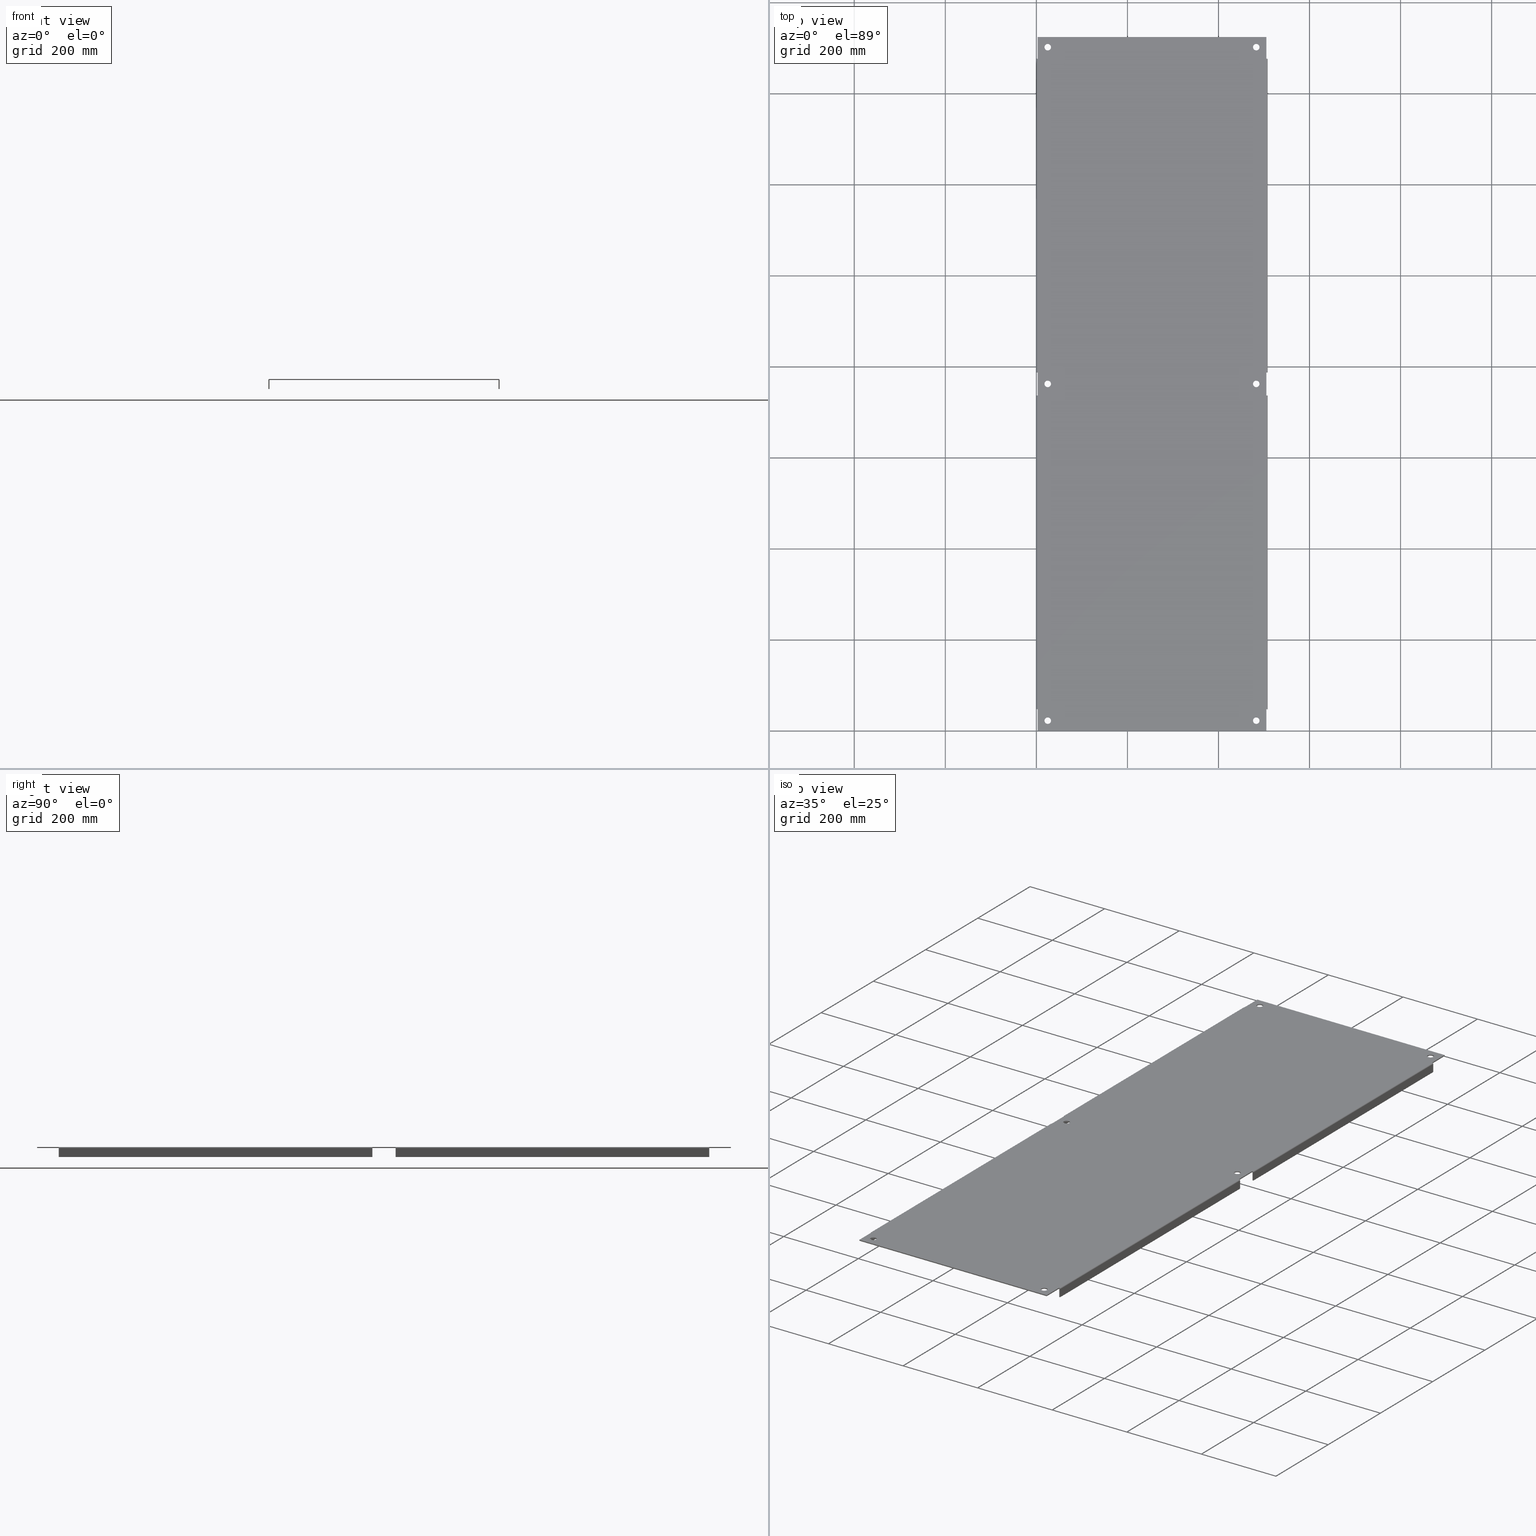
[diagram: canonical four-view strip — front | top / right | iso, engineering-drawing reading convention]
A machine part, canonical four-view strip (front | top / right | iso — engineering-drawing reading convention). The complete STEP part file that produces these views, byte-faithful:
ISO-10303-21;
HEADER;
/****************************************************************
 * Generated by software with PDElib inside                    *
 * PDElib Version v51a, created Wed 07/06/2011                  *
 * ITI Transcendata (http://www.transcendata.com/)              *
 ****************************************************************/
FILE_DESCRIPTION((''),'2;1');
FILE_NAME('C:\\W_Vault\\W-India\\Panels\\WA_SMP\\WA_SMP_DXF STP\\WA72SMP20.stp','2013-06-25T08:26:45',('ypadmaraja'),(''),'Autodesk Inventor 2012','Autodesk Inventor 2012','');
FILE_SCHEMA(('AUTOMOTIVE_DESIGN { 1 0 10303 214 1 1 1 1 }'));
ENDSEC;
DATA;
#5=APPLICATION_CONTEXT('automotive design');
#6=APPLICATION_PROTOCOL_DEFINITION('International Standard','automotive_design',2001,#5);
#7=PRODUCT_CONTEXT('',#5,'mechanical');
#8=PRODUCT('WA60SMP14-WA90SMP20','WA60SMP14-WA90SMP20',$,(#7));
#9=PRODUCT_RELATED_PRODUCT_CATEGORY('part',$,(#8));
#10=PRODUCT_DEFINITION_FORMATION('',$,#8);
#11=PRODUCT_DEFINITION_CONTEXT('part definition',#5,'design');
#12=PRODUCT_DEFINITION('',$,#10,#11);
#18=(NAMED_UNIT(*)PLANE_ANGLE_UNIT()SI_UNIT($,.RADIAN.));
#19=DIMENSIONAL_EXPONENTS(0.0,0.0,0.0,0.0,0.0,0.0,0.0);
#20=PLANE_ANGLE_MEASURE_WITH_UNIT(PLANE_ANGLE_MEASURE(0.0174532925),#18);
#24=(CONVERSION_BASED_UNIT('DEGREE',#20)NAMED_UNIT(#19)PLANE_ANGLE_UNIT());
#28=(NAMED_UNIT(*)SI_UNIT($,.STERADIAN.)SOLID_ANGLE_UNIT());
#32=(LENGTH_UNIT()NAMED_UNIT(*)SI_UNIT(.CENTI.,.METRE.));
#33=DIMENSIONAL_EXPONENTS(1.0,0.0,0.0,0.0,0.0,0.0,0.0);
#34=LENGTH_MEASURE_WITH_UNIT(LENGTH_MEASURE(2.54),#32);
#38=(CONVERSION_BASED_UNIT('INCH',#34)LENGTH_UNIT()NAMED_UNIT(#33));
#40=UNCERTAINTY_MEASURE_WITH_UNIT(LENGTH_MEASURE(0.000393700787402),#38,'DISTANCE_ACCURACY_VALUE','');
#42=(GEOMETRIC_REPRESENTATION_CONTEXT(3)GLOBAL_UNCERTAINTY_ASSIGNED_CONTEXT((#40))GLOBAL_UNIT_ASSIGNED_CONTEXT((#24,#28,#38))REPRESENTATION_CONTEXT('None','None'));
#43=AXIS2_PLACEMENT_3D('',#44,#45,#46);
#44=CARTESIAN_POINT('',(0.0,0.0,0.0));
#45=DIRECTION('',(0.0,0.0,1.0));
#46=DIRECTION('',(1.0,0.0,0.0));
#47=SHAPE_REPRESENTATION('',(#43),#42);
#48=PRODUCT_DEFINITION_SHAPE('','',#12);
#49=SHAPE_DEFINITION_REPRESENTATION(#48,#47);
#55=(NAMED_UNIT(*)PLANE_ANGLE_UNIT()SI_UNIT($,.RADIAN.));
#56=DIMENSIONAL_EXPONENTS(0.0,0.0,0.0,0.0,0.0,0.0,0.0);
#57=PLANE_ANGLE_MEASURE_WITH_UNIT(PLANE_ANGLE_MEASURE(0.0174532925),#55);
#61=(CONVERSION_BASED_UNIT('DEGREE',#57)NAMED_UNIT(#56)PLANE_ANGLE_UNIT());
#65=(NAMED_UNIT(*)SI_UNIT($,.STERADIAN.)SOLID_ANGLE_UNIT());
#69=(LENGTH_UNIT()NAMED_UNIT(*)SI_UNIT(.MILLI.,.METRE.));
#71=UNCERTAINTY_MEASURE_WITH_UNIT(LENGTH_MEASURE(0.000001),#69,'DISTANCE_ACCURACY_VALUE','');
#73=(GEOMETRIC_REPRESENTATION_CONTEXT(3)GLOBAL_UNCERTAINTY_ASSIGNED_CONTEXT((#71))GLOBAL_UNIT_ASSIGNED_CONTEXT((#61,#65,#69))REPRESENTATION_CONTEXT('','3D'));
#74=CARTESIAN_POINT('',(19.016049999999964,30.000000000000004,0.046875));
#75=DIRECTION('',(0.0,0.0,1.0));
#76=DIRECTION('',(1.0,0.0,0.0));
#77=AXIS2_PLACEMENT_3D('',#74,#75,#76);
#78=CYLINDRICAL_SURFACE('',#77,0.28125);
#79=CARTESIAN_POINT('',(19.297299999999964,30.000000000000004,0.09375));
#80=VERTEX_POINT('',#79);
#81=CARTESIAN_POINT('',(19.016049999999964,30.000000000000004,0.09375));
#82=DIRECTION('',(0.0,0.0,-1.0));
#83=DIRECTION('',(1.0,0.0,0.0));
#84=AXIS2_PLACEMENT_3D('',#81,#82,#83);
#85=CIRCLE('',#84,0.28125);
#86=EDGE_CURVE('',#80,#80,#85,.T.);
#87=ORIENTED_EDGE('',*,*,#86,.F.);
#88=EDGE_LOOP('',(#87));
#89=FACE_OUTER_BOUND('',#88,.T.);
#90=CARTESIAN_POINT('',(19.297299999999964,30.000000000000004,0.0));
#91=VERTEX_POINT('',#90);
#92=CARTESIAN_POINT('',(19.016049999999964,30.000000000000004,0.0));
#93=DIRECTION('',(0.0,0.0,1.0));
#94=DIRECTION('',(1.0,0.0,0.0));
#95=AXIS2_PLACEMENT_3D('',#92,#93,#94);
#96=CIRCLE('',#95,0.28125);
#97=EDGE_CURVE('',#91,#91,#96,.T.);
#98=ORIENTED_EDGE('',*,*,#97,.F.);
#99=EDGE_LOOP('',(#98));
#100=FACE_BOUND('',#99,.T.);
#101=ADVANCED_FACE('',(#89,#100),#78,.F.);
#102=CARTESIAN_POINT('',(0.983749999999964,30.000000000000004,0.046875));
#103=DIRECTION('',(0.0,0.0,1.0));
#104=DIRECTION('',(1.0,0.0,0.0));
#105=AXIS2_PLACEMENT_3D('',#102,#103,#104);
#106=CYLINDRICAL_SURFACE('',#105,0.28125);
#107=CARTESIAN_POINT('',(1.264999999999965,30.000000000000004,0.09375));
#108=VERTEX_POINT('',#107);
#109=CARTESIAN_POINT('',(0.983749999999964,30.000000000000004,0.09375));
#110=DIRECTION('',(0.0,0.0,-1.0));
#111=DIRECTION('',(1.0,0.0,0.0));
#112=AXIS2_PLACEMENT_3D('',#109,#110,#111);
#113=CIRCLE('',#112,0.28125);
#114=EDGE_CURVE('',#108,#108,#113,.T.);
#115=ORIENTED_EDGE('',*,*,#114,.F.);
#116=EDGE_LOOP('',(#115));
#117=FACE_OUTER_BOUND('',#116,.T.);
#118=CARTESIAN_POINT('',(1.264999999999965,30.000000000000004,0.0));
#119=VERTEX_POINT('',#118);
#120=CARTESIAN_POINT('',(0.983749999999964,30.000000000000004,0.0));
#121=DIRECTION('',(0.0,0.0,1.0));
#122=DIRECTION('',(1.0,0.0,0.0));
#123=AXIS2_PLACEMENT_3D('',#120,#121,#122);
#124=CIRCLE('',#123,0.28125);
#125=EDGE_CURVE('',#119,#119,#124,.T.);
#126=ORIENTED_EDGE('',*,*,#125,.F.);
#127=EDGE_LOOP('',(#126));
#128=FACE_BOUND('',#127,.T.);
#129=ADVANCED_FACE('',(#117,#128),#106,.F.);
#130=CARTESIAN_POINT('',(19.016049999999968,0.874999999999999,0.046875));
#131=DIRECTION('',(0.0,0.0,1.0));
#132=DIRECTION('',(1.0,0.0,0.0));
#133=AXIS2_PLACEMENT_3D('',#130,#131,#132);
#134=CYLINDRICAL_SURFACE('',#133,0.28125);
#135=CARTESIAN_POINT('',(19.297299999999968,0.874999999999999,0.09375));
#136=VERTEX_POINT('',#135);
#137=CARTESIAN_POINT('',(19.016049999999968,0.874999999999999,0.09375));
#138=DIRECTION('',(0.0,0.0,-1.0));
#139=DIRECTION('',(1.0,0.0,0.0));
#140=AXIS2_PLACEMENT_3D('',#137,#138,#139);
#141=CIRCLE('',#140,0.28125);
#142=EDGE_CURVE('',#136,#136,#141,.T.);
#143=ORIENTED_EDGE('',*,*,#142,.F.);
#144=EDGE_LOOP('',(#143));
#145=FACE_OUTER_BOUND('',#144,.T.);
#146=CARTESIAN_POINT('',(19.297299999999968,0.874999999999999,0.0));
#147=VERTEX_POINT('',#146);
#148=CARTESIAN_POINT('',(19.016049999999968,0.874999999999999,0.0));
#149=DIRECTION('',(0.0,0.0,1.0));
#150=DIRECTION('',(1.0,0.0,0.0));
#151=AXIS2_PLACEMENT_3D('',#148,#149,#150);
#152=CIRCLE('',#151,0.28125);
#153=EDGE_CURVE('',#147,#147,#152,.T.);
#154=ORIENTED_EDGE('',*,*,#153,.F.);
#155=EDGE_LOOP('',(#154));
#156=FACE_BOUND('',#155,.T.);
#157=ADVANCED_FACE('',(#145,#156),#134,.F.);
#158=CARTESIAN_POINT('',(0.983749999999967,0.874999999999999,0.046875));
#159=DIRECTION('',(0.0,0.0,1.0));
#160=DIRECTION('',(1.0,0.0,0.0));
#161=AXIS2_PLACEMENT_3D('',#158,#159,#160);
#162=CYLINDRICAL_SURFACE('',#161,0.28125);
#163=CARTESIAN_POINT('',(1.264999999999966,0.874999999999999,0.09375));
#164=VERTEX_POINT('',#163);
#165=CARTESIAN_POINT('',(0.983749999999967,0.874999999999999,0.09375));
#166=DIRECTION('',(0.0,0.0,-1.0));
#167=DIRECTION('',(1.0,0.0,0.0));
#168=AXIS2_PLACEMENT_3D('',#165,#166,#167);
#169=CIRCLE('',#168,0.28125);
#170=EDGE_CURVE('',#164,#164,#169,.T.);
#171=ORIENTED_EDGE('',*,*,#170,.F.);
#172=EDGE_LOOP('',(#171));
#173=FACE_OUTER_BOUND('',#172,.T.);
#174=CARTESIAN_POINT('',(1.264999999999966,0.874999999999999,0.0));
#175=VERTEX_POINT('',#174);
#176=CARTESIAN_POINT('',(0.983749999999967,0.874999999999999,0.0));
#177=DIRECTION('',(0.0,0.0,1.0));
#178=DIRECTION('',(1.0,0.0,0.0));
#179=AXIS2_PLACEMENT_3D('',#176,#177,#178);
#180=CIRCLE('',#179,0.28125);
#181=EDGE_CURVE('',#175,#175,#180,.T.);
#182=ORIENTED_EDGE('',*,*,#181,.F.);
#183=EDGE_LOOP('',(#182));
#184=FACE_BOUND('',#183,.T.);
#185=ADVANCED_FACE('',(#173,#184),#162,.F.);
#186=CARTESIAN_POINT('',(19.016049999999964,59.125000000000007,0.046875));
#187=DIRECTION('',(0.0,0.0,1.0));
#188=DIRECTION('',(1.0,0.0,0.0));
#189=AXIS2_PLACEMENT_3D('',#186,#187,#188);
#190=CYLINDRICAL_SURFACE('',#189,0.28125);
#191=CARTESIAN_POINT('',(19.297299999999964,59.125000000000007,0.09375));
#192=VERTEX_POINT('',#191);
#193=CARTESIAN_POINT('',(19.016049999999964,59.125000000000007,0.09375));
#194=DIRECTION('',(0.0,0.0,-1.0));
#195=DIRECTION('',(1.0,0.0,0.0));
#196=AXIS2_PLACEMENT_3D('',#193,#194,#195);
#197=CIRCLE('',#196,0.28125);
#198=EDGE_CURVE('',#192,#192,#197,.T.);
#199=ORIENTED_EDGE('',*,*,#198,.F.);
#200=EDGE_LOOP('',(#199));
#201=FACE_OUTER_BOUND('',#200,.T.);
#202=CARTESIAN_POINT('',(19.297299999999964,59.125000000000007,0.0));
#203=VERTEX_POINT('',#202);
#204=CARTESIAN_POINT('',(19.016049999999964,59.125000000000007,0.0));
#205=DIRECTION('',(0.0,0.0,1.0));
#206=DIRECTION('',(1.0,0.0,0.0));
#207=AXIS2_PLACEMENT_3D('',#204,#205,#206);
#208=CIRCLE('',#207,0.28125);
#209=EDGE_CURVE('',#203,#203,#208,.T.);
#210=ORIENTED_EDGE('',*,*,#209,.F.);
#211=EDGE_LOOP('',(#210));
#212=FACE_BOUND('',#211,.T.);
#213=ADVANCED_FACE('',(#201,#212),#190,.F.);
#214=CARTESIAN_POINT('',(0.983749999999964,59.125000000000007,0.046875));
#215=DIRECTION('',(0.0,0.0,1.0));
#216=DIRECTION('',(1.0,0.0,0.0));
#217=AXIS2_PLACEMENT_3D('',#214,#215,#216);
#218=CYLINDRICAL_SURFACE('',#217,0.28125);
#219=CARTESIAN_POINT('',(1.264999999999964,59.125000000000007,0.09375));
#220=VERTEX_POINT('',#219);
#221=CARTESIAN_POINT('',(0.983749999999964,59.125000000000007,0.09375));
#222=DIRECTION('',(0.0,0.0,-1.0));
#223=DIRECTION('',(1.0,0.0,0.0));
#224=AXIS2_PLACEMENT_3D('',#221,#222,#223);
#225=CIRCLE('',#224,0.28125);
#226=EDGE_CURVE('',#220,#220,#225,.T.);
#227=ORIENTED_EDGE('',*,*,#226,.F.);
#228=EDGE_LOOP('',(#227));
#229=FACE_OUTER_BOUND('',#228,.T.);
#230=CARTESIAN_POINT('',(1.264999999999964,59.125000000000007,0.0));
#231=VERTEX_POINT('',#230);
#232=CARTESIAN_POINT('',(0.983749999999964,59.125000000000007,0.0));
#233=DIRECTION('',(0.0,0.0,1.0));
#234=DIRECTION('',(1.0,0.0,0.0));
#235=AXIS2_PLACEMENT_3D('',#232,#233,#234);
#236=CIRCLE('',#235,0.28125);
#237=EDGE_CURVE('',#231,#231,#236,.T.);
#238=ORIENTED_EDGE('',*,*,#237,.F.);
#239=EDGE_LOOP('',(#238));
#240=FACE_BOUND('',#239,.T.);
#241=ADVANCED_FACE('',(#229,#240),#218,.F.);
#242=CARTESIAN_POINT('',(0.054374999999983,31.000000000000011,-0.34375));
#243=DIRECTION('',(0.0,1.0,0.0));
#244=DIRECTION('',(0.0,0.0,1.0));
#245=AXIS2_PLACEMENT_3D('',#242,#243,#244);
#246=PLANE('',#245);
#247=CARTESIAN_POINT('',(0.108749999999965,31.000000000000007,0.0));
#248=VERTEX_POINT('',#247);
#249=CARTESIAN_POINT('',(0.093749999998802,31.000000000000011,-0.015000000001258));
#250=VERTEX_POINT('',#249);
#251=CARTESIAN_POINT('',(0.108750000000008,31.000000000000011,-0.015));
#252=DIRECTION('',(-1.345737E-026,-1.0,4.180041E-014));
#253=DIRECTION('',(-3.219436E-013,4.180041E-014,1.0));
#254=AXIS2_PLACEMENT_3D('',#251,#252,#253);
#255=CIRCLE('',#254,0.015);
#256=EDGE_CURVE('',#248,#250,#255,.T.);
#257=ORIENTED_EDGE('',*,*,#256,.F.);
#258=CARTESIAN_POINT('',(0.108749999999965,31.000000000000011,0.09375));
#259=VERTEX_POINT('',#258);
#260=CARTESIAN_POINT('',(0.108749999999965,31.000000000000007,0.0));
#261=DIRECTION('',(0.0,0.0,1.0));
#262=VECTOR('',#261,0.09375);
#263=LINE('',#260,#262);
#264=EDGE_CURVE('',#248,#259,#263,.T.);
#265=ORIENTED_EDGE('',*,*,#264,.T.);
#266=CARTESIAN_POINT('',(-1.942647E-019,31.000000000000007,-0.015));
#267=VERTEX_POINT('',#266);
#268=CARTESIAN_POINT('',(0.108750000000008,31.000000000000011,-0.015));
#269=DIRECTION('',(1.345737E-026,1.0,-4.180041E-014));
#270=DIRECTION('',(-3.219436E-013,4.180041E-014,1.0));
#271=AXIS2_PLACEMENT_3D('',#268,#269,#270);
#272=CIRCLE('',#271,0.10875);
#273=EDGE_CURVE('',#267,#259,#272,.T.);
#274=ORIENTED_EDGE('',*,*,#273,.F.);
#275=CARTESIAN_POINT('',(0.0,31.000000000000011,-0.78125));
#276=VERTEX_POINT('',#275);
#277=CARTESIAN_POINT('',(-9.553272E-015,31.000000000000011,-0.78125));
#278=DIRECTION('',(0.0,0.0,1.0));
#279=VECTOR('',#278,0.76625);
#280=LINE('',#277,#279);
#281=EDGE_CURVE('',#276,#267,#280,.T.);
#282=ORIENTED_EDGE('',*,*,#281,.F.);
#283=CARTESIAN_POINT('',(0.09374999999999,31.000000000000007,-0.78125));
#284=VERTEX_POINT('',#283);
#285=CARTESIAN_POINT('',(0.09374999999999,31.000000000000011,-0.78125));
#286=DIRECTION('',(-1.0,0.0,0.0));
#287=VECTOR('',#286,0.09374999999999);
#288=LINE('',#285,#287);
#289=EDGE_CURVE('',#284,#276,#288,.T.);
#290=ORIENTED_EDGE('',*,*,#289,.F.);
#291=CARTESIAN_POINT('',(0.09374999999999,31.000000000000011,-0.015000000001258));
#292=DIRECTION('',(0.0,0.0,-1.0));
#293=VECTOR('',#292,0.766249999998742);
#294=LINE('',#291,#293);
#295=EDGE_CURVE('',#250,#284,#294,.T.);
#296=ORIENTED_EDGE('',*,*,#295,.F.);
#297=EDGE_LOOP('',(#257,#265,#274,#282,#290,#296));
#298=FACE_OUTER_BOUND('',#297,.T.);
#299=ADVANCED_FACE('',(#298),#246,.F.);
#300=CARTESIAN_POINT('',(0.054374999999983,29.000000000000007,-0.34375));
#301=DIRECTION('',(0.0,1.0,0.0));
#302=DIRECTION('',(0.0,0.0,1.0));
#303=AXIS2_PLACEMENT_3D('',#300,#301,#302);
#304=PLANE('',#303);
#305=CARTESIAN_POINT('',(0.093749999998886,29.000000000000007,-0.015000000001174));
#306=VERTEX_POINT('',#305);
#307=CARTESIAN_POINT('',(0.108749999999965,29.0,0.0));
#308=VERTEX_POINT('',#307);
#309=CARTESIAN_POINT('',(0.108750000000008,29.000000000000007,-0.015));
#310=DIRECTION('',(1.345737E-026,1.0,-4.180041E-014));
#311=DIRECTION('',(-3.219436E-013,4.180041E-014,1.0));
#312=AXIS2_PLACEMENT_3D('',#309,#310,#311);
#313=CIRCLE('',#312,0.015);
#314=EDGE_CURVE('',#306,#308,#313,.T.);
#315=ORIENTED_EDGE('',*,*,#314,.F.);
#316=CARTESIAN_POINT('',(0.093749999999991,29.000000000000007,-0.78125));
#317=VERTEX_POINT('',#316);
#318=CARTESIAN_POINT('',(0.093749999999991,29.000000000000007,-0.78125));
#319=DIRECTION('',(0.0,0.0,1.0));
#320=VECTOR('',#319,0.766249999998826);
#321=LINE('',#318,#320);
#322=EDGE_CURVE('',#317,#306,#321,.T.);
#323=ORIENTED_EDGE('',*,*,#322,.F.);
#324=CARTESIAN_POINT('',(0.0,29.000000000000007,-0.78125));
#325=VERTEX_POINT('',#324);
#326=CARTESIAN_POINT('',(0.0,29.000000000000007,-0.78125));
#327=DIRECTION('',(1.0,0.0,0.0));
#328=VECTOR('',#327,0.093749999999991);
#329=LINE('',#326,#328);
#330=EDGE_CURVE('',#325,#317,#329,.T.);
#331=ORIENTED_EDGE('',*,*,#330,.F.);
#332=CARTESIAN_POINT('',(-1.114353E-012,29.000000000000007,-0.015000000001174));
#333=VERTEX_POINT('',#332);
#334=CARTESIAN_POINT('',(-8.893492E-015,29.000000000000007,-0.015000000001174));
#335=DIRECTION('',(0.0,0.0,-1.0));
#336=VECTOR('',#335,0.766249999998826);
#337=LINE('',#334,#336);
#338=EDGE_CURVE('',#333,#325,#337,.T.);
#339=ORIENTED_EDGE('',*,*,#338,.F.);
#340=CARTESIAN_POINT('',(0.108749999999965,29.000000000000007,0.09375));
#341=VERTEX_POINT('',#340);
#342=CARTESIAN_POINT('',(0.108750000000008,29.000000000000007,-0.015));
#343=DIRECTION('',(-1.345737E-026,-1.0,4.180041E-014));
#344=DIRECTION('',(-3.219436E-013,4.180041E-014,1.0));
#345=AXIS2_PLACEMENT_3D('',#342,#343,#344);
#346=CIRCLE('',#345,0.10875);
#347=EDGE_CURVE('',#341,#333,#346,.T.);
#348=ORIENTED_EDGE('',*,*,#347,.F.);
#349=CARTESIAN_POINT('',(0.108749999999965,29.0,0.09375));
#350=DIRECTION('',(0.0,0.0,-1.0));
#351=VECTOR('',#350,0.09375);
#352=LINE('',#349,#351);
#353=EDGE_CURVE('',#341,#308,#352,.T.);
#354=ORIENTED_EDGE('',*,*,#353,.T.);
#355=EDGE_LOOP('',(#315,#323,#331,#339,#348,#354));
#356=FACE_OUTER_BOUND('',#355,.T.);
#357=ADVANCED_FACE('',(#356),#304,.T.);
#358=CARTESIAN_POINT('',(0.108749999999965,30.000000000000004,-0.78125));
#359=DIRECTION('',(1.0,0.0,0.0));
#360=DIRECTION('',(0.0,0.0,-1.0));
#361=AXIS2_PLACEMENT_3D('',#358,#359,#360);
#362=PLANE('',#361);
#363=CARTESIAN_POINT('',(0.108749999999973,29.0,0.0));
#364=DIRECTION('',(0.0,1.0,0.0));
#365=VECTOR('',#364,2.000000000000004);
#366=LINE('',#363,#365);
#367=EDGE_CURVE('',#308,#248,#366,.T.);
#368=ORIENTED_EDGE('',*,*,#367,.F.);
#369=ORIENTED_EDGE('',*,*,#353,.F.);
#370=CARTESIAN_POINT('',(0.108749999999973,31.000000000000007,0.09375));
#371=DIRECTION('',(0.0,-1.0,0.0));
#372=VECTOR('',#371,2.000000000000004);
#373=LINE('',#370,#372);
#374=EDGE_CURVE('',#259,#341,#373,.T.);
#375=ORIENTED_EDGE('',*,*,#374,.F.);
#376=ORIENTED_EDGE('',*,*,#264,.F.);
#377=EDGE_LOOP('',(#368,#369,#375,#376));
#378=FACE_OUTER_BOUND('',#377,.T.);
#379=ADVANCED_FACE('',(#378),#362,.F.);
#380=CARTESIAN_POINT('',(0.108750000000008,30.000000000000004,-0.015));
#381=DIRECTION('',(3.061612E-016,-1.0,0.0));
#382=DIRECTION('',(-3.219436E-013,4.180041E-014,1.0));
#383=AXIS2_PLACEMENT_3D('',#380,#381,#382);
#384=CYLINDRICAL_SURFACE('',#383,0.015);
#385=ORIENTED_EDGE('',*,*,#314,.T.);
#386=CARTESIAN_POINT('',(0.108749999999982,1.875,0.0));
#387=VERTEX_POINT('',#386);
#388=CARTESIAN_POINT('',(0.108749999999981,1.875,0.0));
#389=DIRECTION('',(0.0,1.0,0.0));
#390=VECTOR('',#389,27.125);
#391=LINE('',#388,#390);
#392=EDGE_CURVE('',#387,#308,#391,.T.);
#393=ORIENTED_EDGE('',*,*,#392,.F.);
#394=CARTESIAN_POINT('',(0.093750000000017,1.874999999999996,-0.015000000000032));
#395=VERTEX_POINT('',#394);
#396=CARTESIAN_POINT('',(0.108750000000017,1.874999999999996,-0.015));
#397=DIRECTION('',(-1.345737E-026,-1.0,4.180041E-014));
#398=DIRECTION('',(-3.219436E-013,4.180041E-014,1.0));
#399=AXIS2_PLACEMENT_3D('',#396,#397,#398);
#400=CIRCLE('',#399,0.015);
#401=EDGE_CURVE('',#387,#395,#400,.T.);
#402=ORIENTED_EDGE('',*,*,#401,.T.);
#403=CARTESIAN_POINT('',(0.093750000000019,1.874999999999993,-0.015000000000032));
#404=DIRECTION('',(0.0,1.0,0.0));
#405=VECTOR('',#404,27.125000000000011);
#406=LINE('',#403,#405);
#407=EDGE_CURVE('',#395,#306,#406,.T.);
#408=ORIENTED_EDGE('',*,*,#407,.T.);
#409=EDGE_LOOP('',(#385,#393,#402,#408));
#410=FACE_OUTER_BOUND('',#409,.T.);
#411=ADVANCED_FACE('',(#410),#384,.F.);
#412=CARTESIAN_POINT('',(0.108750000000008,30.000000000000004,-0.015));
#413=DIRECTION('',(3.061612E-016,-1.0,0.0));
#414=DIRECTION('',(-3.219436E-013,4.180041E-014,1.0));
#415=AXIS2_PLACEMENT_3D('',#412,#413,#414);
#416=CYLINDRICAL_SURFACE('',#415,0.015);
#417=ORIENTED_EDGE('',*,*,#256,.T.);
#418=CARTESIAN_POINT('',(0.093749999999999,58.125000000000007,-0.015000000002401));
#419=VERTEX_POINT('',#418);
#420=CARTESIAN_POINT('',(0.093749999998802,31.000000000000007,-0.015000000001258));
#421=DIRECTION('',(0.0,1.0,0.0));
#422=VECTOR('',#421,27.125);
#423=LINE('',#420,#422);
#424=EDGE_CURVE('',#250,#419,#423,.T.);
#425=ORIENTED_EDGE('',*,*,#424,.T.);
#426=CARTESIAN_POINT('',(0.108749999999964,58.125000000000007,0.0));
#427=VERTEX_POINT('',#426);
#428=CARTESIAN_POINT('',(0.108749999999999,58.125000000000007,-0.015));
#429=DIRECTION('',(-1.345737E-026,-1.0,4.180041E-014));
#430=DIRECTION('',(-3.219436E-013,4.180041E-014,1.0));
#431=AXIS2_PLACEMENT_3D('',#428,#429,#430);
#432=CIRCLE('',#431,0.015);
#433=EDGE_CURVE('',#427,#419,#432,.T.);
#434=ORIENTED_EDGE('',*,*,#433,.F.);
#435=CARTESIAN_POINT('',(0.108749999999972,31.000000000000004,0.0));
#436=DIRECTION('',(0.0,1.0,0.0));
#437=VECTOR('',#436,27.125000000000004);
#438=LINE('',#435,#437);
#439=EDGE_CURVE('',#248,#427,#438,.T.);
#440=ORIENTED_EDGE('',*,*,#439,.F.);
#441=EDGE_LOOP('',(#417,#425,#434,#440));
#442=FACE_OUTER_BOUND('',#441,.T.);
#443=ADVANCED_FACE('',(#442),#416,.F.);
#444=CARTESIAN_POINT('',(0.093749999999999,1.875,-0.78125));
#445=DIRECTION('',(1.0,0.0,0.0));
#446=DIRECTION('',(0.0,0.0,-1.0));
#447=AXIS2_PLACEMENT_3D('',#444,#445,#446);
#448=PLANE('',#447);
#449=ORIENTED_EDGE('',*,*,#322,.T.);
#450=ORIENTED_EDGE('',*,*,#407,.F.);
#451=CARTESIAN_POINT('',(0.093749999999999,1.875,-0.78125));
#452=VERTEX_POINT('',#451);
#453=CARTESIAN_POINT('',(0.093749999999999,1.875,-0.015));
#454=DIRECTION('',(0.0,0.0,-1.0));
#455=VECTOR('',#454,0.76625);
#456=LINE('',#453,#455);
#457=EDGE_CURVE('',#395,#452,#456,.T.);
#458=ORIENTED_EDGE('',*,*,#457,.T.);
#459=CARTESIAN_POINT('',(0.093749999999999,1.875,-0.78125));
#460=DIRECTION('',(0.0,1.0,0.0));
#461=VECTOR('',#460,27.125000000000004);
#462=LINE('',#459,#461);
#463=EDGE_CURVE('',#452,#317,#462,.T.);
#464=ORIENTED_EDGE('',*,*,#463,.T.);
#465=EDGE_LOOP('',(#449,#450,#458,#464));
#466=FACE_OUTER_BOUND('',#465,.T.);
#467=ADVANCED_FACE('',(#466),#448,.T.);
#468=CARTESIAN_POINT('',(0.093749999999999,1.875,-0.78125));
#469=DIRECTION('',(1.0,0.0,0.0));
#470=DIRECTION('',(0.0,0.0,-1.0));
#471=AXIS2_PLACEMENT_3D('',#468,#469,#470);
#472=PLANE('',#471);
#473=ORIENTED_EDGE('',*,*,#295,.T.);
#474=CARTESIAN_POINT('',(0.093749999999982,58.125000000000007,-0.78125));
#475=VERTEX_POINT('',#474);
#476=CARTESIAN_POINT('',(0.09374999999999,31.000000000000004,-0.78125));
#477=DIRECTION('',(0.0,1.0,0.0));
#478=VECTOR('',#477,27.125000000000011);
#479=LINE('',#476,#478);
#480=EDGE_CURVE('',#284,#475,#479,.T.);
#481=ORIENTED_EDGE('',*,*,#480,.T.);
#482=CARTESIAN_POINT('',(0.093749999999982,58.125000000000007,-0.78125));
#483=DIRECTION('',(0.0,0.0,1.0));
#484=VECTOR('',#483,0.76625);
#485=LINE('',#482,#484);
#486=EDGE_CURVE('',#475,#419,#485,.T.);
#487=ORIENTED_EDGE('',*,*,#486,.T.);
#488=ORIENTED_EDGE('',*,*,#424,.F.);
#489=EDGE_LOOP('',(#473,#481,#487,#488));
#490=FACE_OUTER_BOUND('',#489,.T.);
#491=ADVANCED_FACE('',(#490),#472,.T.);
#492=CARTESIAN_POINT('',(-6.337887E-016,1.875,-0.78125));
#493=DIRECTION('',(0.0,0.0,-1.0));
#494=DIRECTION('',(-1.0,0.0,0.0));
#495=AXIS2_PLACEMENT_3D('',#492,#493,#494);
#496=PLANE('',#495);
#497=ORIENTED_EDGE('',*,*,#330,.T.);
#498=ORIENTED_EDGE('',*,*,#463,.F.);
#499=CARTESIAN_POINT('',(-6.337887E-016,1.875,-0.78125));
#500=VERTEX_POINT('',#499);
#501=CARTESIAN_POINT('',(0.093749999999999,1.875,-0.78125));
#502=DIRECTION('',(-1.0,0.0,0.0));
#503=VECTOR('',#502,0.09375);
#504=LINE('',#501,#503);
#505=EDGE_CURVE('',#452,#500,#504,.T.);
#506=ORIENTED_EDGE('',*,*,#505,.T.);
#507=CARTESIAN_POINT('',(-6.337887E-016,1.875,-0.78125));
#508=DIRECTION('',(0.0,1.0,0.0));
#509=VECTOR('',#508,27.125000000000004);
#510=LINE('',#507,#509);
#511=EDGE_CURVE('',#500,#325,#510,.T.);
#512=ORIENTED_EDGE('',*,*,#511,.T.);
#513=EDGE_LOOP('',(#497,#498,#506,#512));
#514=FACE_OUTER_BOUND('',#513,.T.);
#515=ADVANCED_FACE('',(#514),#496,.T.);
#516=CARTESIAN_POINT('',(-6.337887E-016,1.875,-0.78125));
#517=DIRECTION('',(0.0,0.0,-1.0));
#518=DIRECTION('',(-1.0,0.0,0.0));
#519=AXIS2_PLACEMENT_3D('',#516,#517,#518);
#520=PLANE('',#519);
#521=ORIENTED_EDGE('',*,*,#289,.T.);
#522=CARTESIAN_POINT('',(-1.785536E-014,58.125000000000007,-0.78125));
#523=VERTEX_POINT('',#522);
#524=CARTESIAN_POINT('',(-9.550735E-015,31.000000000000011,-0.78125));
#525=DIRECTION('',(0.0,1.0,0.0));
#526=VECTOR('',#525,27.125000000000004);
#527=LINE('',#524,#526);
#528=EDGE_CURVE('',#276,#523,#527,.T.);
#529=ORIENTED_EDGE('',*,*,#528,.T.);
#530=CARTESIAN_POINT('',(-1.784684E-014,58.125000000000007,-0.78125));
#531=DIRECTION('',(1.0,0.0,0.0));
#532=VECTOR('',#531,0.09375);
#533=LINE('',#530,#532);
#534=EDGE_CURVE('',#523,#475,#533,.T.);
#535=ORIENTED_EDGE('',*,*,#534,.T.);
#536=ORIENTED_EDGE('',*,*,#480,.F.);
#537=EDGE_LOOP('',(#521,#529,#535,#536));
#538=FACE_OUTER_BOUND('',#537,.T.);
#539=ADVANCED_FACE('',(#538),#520,.T.);
#540=CARTESIAN_POINT('',(0.108750000000008,30.000000000000004,-0.015));
#541=DIRECTION('',(3.061612E-016,-1.0,0.0));
#542=DIRECTION('',(-3.219436E-013,4.180041E-014,1.0));
#543=AXIS2_PLACEMENT_3D('',#540,#541,#542);
#544=CYLINDRICAL_SURFACE('',#543,0.10875);
#545=ORIENTED_EDGE('',*,*,#347,.T.);
#546=CARTESIAN_POINT('',(1.663149E-014,1.875000000000001,-0.015000000000032));
#547=VERTEX_POINT('',#546);
#548=CARTESIAN_POINT('',(-1.114353E-012,29.000000000000007,-0.015000000001174));
#549=DIRECTION('',(0.0,-1.0,0.0));
#550=VECTOR('',#549,27.125000000000007);
#551=LINE('',#548,#550);
#552=EDGE_CURVE('',#333,#547,#551,.T.);
#553=ORIENTED_EDGE('',*,*,#552,.T.);
#554=CARTESIAN_POINT('',(0.108749999999982,1.875,0.09375));
#555=VERTEX_POINT('',#554);
#556=CARTESIAN_POINT('',(0.108750000000017,1.875,-0.015));
#557=DIRECTION('',(-1.345737E-026,-1.0,4.180041E-014));
#558=DIRECTION('',(-3.219436E-013,4.180041E-014,1.0));
#559=AXIS2_PLACEMENT_3D('',#556,#557,#558);
#560=CIRCLE('',#559,0.10875);
#561=EDGE_CURVE('',#555,#547,#560,.T.);
#562=ORIENTED_EDGE('',*,*,#561,.F.);
#563=CARTESIAN_POINT('',(0.108749999999974,29.000000000000004,0.09375));
#564=DIRECTION('',(0.0,-1.0,0.0));
#565=VECTOR('',#564,27.125000000000004);
#566=LINE('',#563,#565);
#567=EDGE_CURVE('',#341,#555,#566,.T.);
#568=ORIENTED_EDGE('',*,*,#567,.F.);
#569=EDGE_LOOP('',(#545,#553,#562,#568));
#570=FACE_OUTER_BOUND('',#569,.T.);
#571=ADVANCED_FACE('',(#570),#544,.T.);
#572=CARTESIAN_POINT('',(-5.791518E-016,1.875,0.09375));
#573=DIRECTION('',(-1.0,0.0,0.0));
#574=DIRECTION('',(0.0,0.0,1.0));
#575=AXIS2_PLACEMENT_3D('',#572,#573,#574);
#576=PLANE('',#575);
#577=ORIENTED_EDGE('',*,*,#338,.T.);
#578=ORIENTED_EDGE('',*,*,#511,.F.);
#579=CARTESIAN_POINT('',(-6.337887E-016,1.875,-0.78125));
#580=DIRECTION('',(0.0,0.0,1.0));
#581=VECTOR('',#580,0.76625);
#582=LINE('',#579,#581);
#583=EDGE_CURVE('',#500,#547,#582,.T.);
#584=ORIENTED_EDGE('',*,*,#583,.T.);
#585=ORIENTED_EDGE('',*,*,#552,.F.);
#586=EDGE_LOOP('',(#577,#578,#584,#585));
#587=FACE_OUTER_BOUND('',#586,.T.);
#588=ADVANCED_FACE('',(#587),#576,.T.);
#589=CARTESIAN_POINT('',(19.89105,30.000000000000004,0.09375));
#590=DIRECTION('',(-1.0,0.0,0.0));
#591=DIRECTION('',(0.0,0.0,1.0));
#592=AXIS2_PLACEMENT_3D('',#589,#590,#591);
#593=PLANE('',#592);
#594=CARTESIAN_POINT('',(19.89105,31.000000000000007,0.0));
#595=VERTEX_POINT('',#594);
#596=CARTESIAN_POINT('',(19.89105,29.0,0.0));
#597=VERTEX_POINT('',#596);
#598=CARTESIAN_POINT('',(19.89105,31.000000000000004,0.0));
#599=DIRECTION('',(0.0,-1.0,0.0));
#600=VECTOR('',#599,2.000000000000004);
#601=LINE('',#598,#600);
#602=EDGE_CURVE('',#595,#597,#601,.T.);
#603=ORIENTED_EDGE('',*,*,#602,.F.);
#604=CARTESIAN_POINT('',(19.89105,31.000000000000018,0.09375));
#605=VERTEX_POINT('',#604);
#606=CARTESIAN_POINT('',(19.89105,31.000000000000007,0.09375));
#607=DIRECTION('',(0.0,0.0,-1.0));
#608=VECTOR('',#607,0.09375);
#609=LINE('',#606,#608);
#610=EDGE_CURVE('',#605,#595,#609,.T.);
#611=ORIENTED_EDGE('',*,*,#610,.F.);
#612=CARTESIAN_POINT('',(19.89105,29.000000000000011,0.09375));
#613=VERTEX_POINT('',#612);
#614=CARTESIAN_POINT('',(19.89105,29.000000000000011,0.09375));
#615=DIRECTION('',(0.0,1.0,0.0));
#616=VECTOR('',#615,2.000000000000004);
#617=LINE('',#614,#616);
#618=EDGE_CURVE('',#613,#605,#617,.T.);
#619=ORIENTED_EDGE('',*,*,#618,.F.);
#620=CARTESIAN_POINT('',(19.89105,29.0,0.0));
#621=DIRECTION('',(0.0,0.0,1.0));
#622=VECTOR('',#621,0.09375);
#623=LINE('',#620,#622);
#624=EDGE_CURVE('',#597,#613,#623,.T.);
#625=ORIENTED_EDGE('',*,*,#624,.F.);
#626=EDGE_LOOP('',(#603,#611,#619,#625));
#627=FACE_OUTER_BOUND('',#626,.T.);
#628=ADVANCED_FACE('',(#627),#593,.F.);
#629=CARTESIAN_POINT('',(19.945525,29.000000000000011,-0.343749999999953));
#630=DIRECTION('',(0.0,1.0,0.0));
#631=DIRECTION('',(0.0,0.0,1.0));
#632=AXIS2_PLACEMENT_3D('',#629,#630,#631);
#633=PLANE('',#632);
#634=CARTESIAN_POINT('',(19.891250000000007,29.000000000000011,0.0));
#635=VERTEX_POINT('',#634);
#636=CARTESIAN_POINT('',(19.89105,29.000000000000011,0.0));
#637=DIRECTION('',(1.0,0.0,0.0));
#638=VECTOR('',#637,0.000200000000007);
#639=LINE('',#636,#638);
#640=EDGE_CURVE('',#597,#635,#639,.T.);
#641=ORIENTED_EDGE('',*,*,#640,.F.);
#642=ORIENTED_EDGE('',*,*,#624,.T.);
#643=CARTESIAN_POINT('',(19.891249999999985,29.0,0.09375));
#644=VERTEX_POINT('',#643);
#645=CARTESIAN_POINT('',(19.891249999999985,29.000000000000011,0.09375));
#646=DIRECTION('',(-1.0,0.0,0.0));
#647=VECTOR('',#646,0.000199999999985);
#648=LINE('',#645,#647);
#649=EDGE_CURVE('',#644,#613,#648,.T.);
#650=ORIENTED_EDGE('',*,*,#649,.F.);
#651=CARTESIAN_POINT('',(19.999999999999979,29.000000000000011,-0.015000000000028));
#652=VERTEX_POINT('',#651);
#653=CARTESIAN_POINT('',(19.891249999999985,29.000000000000011,-0.015));
#654=DIRECTION('',(0.0,-1.0,0.0));
#655=DIRECTION('',(2.057867E-013,0.0,1.0));
#656=AXIS2_PLACEMENT_3D('',#653,#654,#655);
#657=CIRCLE('',#656,0.10875);
#658=EDGE_CURVE('',#652,#644,#657,.T.);
#659=ORIENTED_EDGE('',*,*,#658,.F.);
#660=CARTESIAN_POINT('',(20.0,29.000000000000011,-0.781249999999907));
#661=VERTEX_POINT('',#660);
#662=CARTESIAN_POINT('',(19.999999999999993,29.000000000000011,-0.781249999999907));
#663=DIRECTION('',(0.0,0.0,1.0));
#664=VECTOR('',#663,0.766249999999879);
#665=LINE('',#662,#664);
#666=EDGE_CURVE('',#661,#652,#665,.T.);
#667=ORIENTED_EDGE('',*,*,#666,.F.);
#668=CARTESIAN_POINT('',(19.906249999999996,29.000000000000011,-0.78125));
#669=VERTEX_POINT('',#668);
#670=CARTESIAN_POINT('',(19.906249999999996,29.000000000000011,-0.78125));
#671=DIRECTION('',(1.0,0.0,0.0));
#672=VECTOR('',#671,0.093750000000004);
#673=LINE('',#670,#672);
#674=EDGE_CURVE('',#669,#661,#673,.T.);
#675=ORIENTED_EDGE('',*,*,#674,.F.);
#676=CARTESIAN_POINT('',(19.906249999999975,29.000000000000011,-0.015000000000028));
#677=VERTEX_POINT('',#676);
#678=CARTESIAN_POINT('',(19.906249999999996,29.000000000000011,-0.015000000000028));
#679=DIRECTION('',(0.0,0.0,-1.0));
#680=VECTOR('',#679,0.766249999999972);
#681=LINE('',#678,#680);
#682=EDGE_CURVE('',#677,#669,#681,.T.);
#683=ORIENTED_EDGE('',*,*,#682,.F.);
#684=CARTESIAN_POINT('',(19.891249999999985,29.000000000000011,-0.015));
#685=DIRECTION('',(0.0,1.0,0.0));
#686=DIRECTION('',(2.057867E-013,0.0,1.0));
#687=AXIS2_PLACEMENT_3D('',#684,#685,#686);
#688=CIRCLE('',#687,0.015);
#689=EDGE_CURVE('',#635,#677,#688,.T.);
#690=ORIENTED_EDGE('',*,*,#689,.F.);
#691=EDGE_LOOP('',(#641,#642,#650,#659,#667,#675,#683,#690));
#692=FACE_OUTER_BOUND('',#691,.T.);
#693=ADVANCED_FACE('',(#692),#633,.T.);
#694=CARTESIAN_POINT('',(19.945525,31.000000000000018,-0.343749999999953));
#695=DIRECTION('',(0.0,1.0,0.0));
#696=DIRECTION('',(0.0,0.0,1.0));
#697=AXIS2_PLACEMENT_3D('',#694,#695,#696);
#698=PLANE('',#697);
#699=CARTESIAN_POINT('',(19.891250000000007,31.000000000000018,0.0));
#700=VERTEX_POINT('',#699);
#701=CARTESIAN_POINT('',(19.891250000000007,31.000000000000018,0.0));
#702=DIRECTION('',(-1.0,0.0,0.0));
#703=VECTOR('',#702,0.000200000000007);
#704=LINE('',#701,#703);
#705=EDGE_CURVE('',#700,#595,#704,.T.);
#706=ORIENTED_EDGE('',*,*,#705,.F.);
#707=CARTESIAN_POINT('',(19.906249999999975,31.000000000000018,-0.015000000000028));
#708=VERTEX_POINT('',#707);
#709=CARTESIAN_POINT('',(19.891249999999985,31.000000000000018,-0.015));
#710=DIRECTION('',(0.0,-1.0,0.0));
#711=DIRECTION('',(2.057867E-013,0.0,1.0));
#712=AXIS2_PLACEMENT_3D('',#709,#710,#711);
#713=CIRCLE('',#712,0.015);
#714=EDGE_CURVE('',#708,#700,#713,.T.);
#715=ORIENTED_EDGE('',*,*,#714,.F.);
#716=CARTESIAN_POINT('',(19.906249999999996,31.000000000000007,-0.781249999999907));
#717=VERTEX_POINT('',#716);
#718=CARTESIAN_POINT('',(19.906249999999996,31.000000000000018,-0.781249999999907));
#719=DIRECTION('',(0.0,0.0,1.0));
#720=VECTOR('',#719,0.766249999999879);
#721=LINE('',#718,#720);
#722=EDGE_CURVE('',#717,#708,#721,.T.);
#723=ORIENTED_EDGE('',*,*,#722,.F.);
#724=CARTESIAN_POINT('',(20.0,31.000000000000018,-0.781249999999907));
#725=VERTEX_POINT('',#724);
#726=CARTESIAN_POINT('',(20.0,31.000000000000018,-0.78125));
#727=DIRECTION('',(-1.0,0.0,0.0));
#728=VECTOR('',#727,0.093750000000004);
#729=LINE('',#726,#728);
#730=EDGE_CURVE('',#725,#717,#729,.T.);
#731=ORIENTED_EDGE('',*,*,#730,.F.);
#732=CARTESIAN_POINT('',(20.0,31.000000000000007,-0.015));
#733=VERTEX_POINT('',#732);
#734=CARTESIAN_POINT('',(19.999999999999993,31.000000000000018,-0.015));
#735=DIRECTION('',(0.0,0.0,-1.0));
#736=VECTOR('',#735,0.766249999999907);
#737=LINE('',#734,#736);
#738=EDGE_CURVE('',#733,#725,#737,.T.);
#739=ORIENTED_EDGE('',*,*,#738,.F.);
#740=CARTESIAN_POINT('',(19.891249999999985,31.000000000000007,0.09375));
#741=VERTEX_POINT('',#740);
#742=CARTESIAN_POINT('',(19.891249999999985,31.000000000000018,-0.015));
#743=DIRECTION('',(0.0,1.0,0.0));
#744=DIRECTION('',(2.057867E-013,0.0,1.0));
#745=AXIS2_PLACEMENT_3D('',#742,#743,#744);
#746=CIRCLE('',#745,0.10875);
#747=EDGE_CURVE('',#741,#733,#746,.T.);
#748=ORIENTED_EDGE('',*,*,#747,.F.);
#749=CARTESIAN_POINT('',(19.89105,31.000000000000018,0.09375));
#750=DIRECTION('',(1.0,0.0,0.0));
#751=VECTOR('',#750,0.000199999999985);
#752=LINE('',#749,#751);
#753=EDGE_CURVE('',#605,#741,#752,.T.);
#754=ORIENTED_EDGE('',*,*,#753,.F.);
#755=ORIENTED_EDGE('',*,*,#610,.T.);
#756=EDGE_LOOP('',(#706,#715,#723,#731,#739,#748,#754,#755));
#757=FACE_OUTER_BOUND('',#756,.T.);
#758=ADVANCED_FACE('',(#757),#698,.F.);
#759=CARTESIAN_POINT('',(9.999999999999993,30.000000000000014,0.0));
#760=DIRECTION('',(0.0,0.0,1.0));
#761=DIRECTION('',(1.0,0.0,0.0));
#762=AXIS2_PLACEMENT_3D('',#759,#760,#761);
#763=PLANE('',#762);
#764=ORIENTED_EDGE('',*,*,#705,.T.);
#765=ORIENTED_EDGE('',*,*,#602,.T.);
#766=ORIENTED_EDGE('',*,*,#640,.T.);
#767=CARTESIAN_POINT('',(19.891250000000014,1.875000000000007,0.0));
#768=VERTEX_POINT('',#767);
#769=CARTESIAN_POINT('',(19.891250000000007,29.000000000000014,0.0));
#770=DIRECTION('',(0.0,-1.0,0.0));
#771=VECTOR('',#770,27.125000000000007);
#772=LINE('',#769,#771);
#773=EDGE_CURVE('',#635,#768,#772,.T.);
#774=ORIENTED_EDGE('',*,*,#773,.T.);
#775=CARTESIAN_POINT('',(19.891050000000011,1.875000000000007,1.092739E-017));
#776=VERTEX_POINT('',#775);
#777=CARTESIAN_POINT('',(19.891250000000014,1.875000000000007,0.0));
#778=DIRECTION('',(-1.0,0.0,0.0));
#779=VECTOR('',#778,0.000200000000003);
#780=LINE('',#777,#779);
#781=EDGE_CURVE('',#768,#776,#780,.T.);
#782=ORIENTED_EDGE('',*,*,#781,.T.);
#783=CARTESIAN_POINT('',(19.891050000000011,1.874800000000007,1.092739E-017));
#784=VERTEX_POINT('',#783);
#785=CARTESIAN_POINT('',(19.891050000000011,1.875000000000007,0.0));
#786=DIRECTION('',(0.0,-1.0,0.0));
#787=VECTOR('',#786,0.000200000000001);
#788=LINE('',#785,#787);
#789=EDGE_CURVE('',#776,#784,#788,.T.);
#790=ORIENTED_EDGE('',*,*,#789,.T.);
#791=CARTESIAN_POINT('',(19.891250000000014,1.874800000000008,0.0));
#792=VERTEX_POINT('',#791);
#793=CARTESIAN_POINT('',(19.891050000000011,1.874800000000008,0.0));
#794=DIRECTION('',(1.0,0.0,0.0));
#795=VECTOR('',#794,0.000200000000003);
#796=LINE('',#793,#795);
#797=EDGE_CURVE('',#784,#792,#796,.T.);
#798=ORIENTED_EDGE('',*,*,#797,.T.);
#799=CARTESIAN_POINT('',(19.891250000000014,-1.331803E-017,1.092739E-017));
#800=VERTEX_POINT('',#799);
#801=CARTESIAN_POINT('',(19.891250000000014,1.874800000000009,0.0));
#802=DIRECTION('',(0.0,-1.0,0.0));
#803=VECTOR('',#802,1.874800000000009);
#804=LINE('',#801,#803);
#805=EDGE_CURVE('',#792,#800,#804,.T.);
#806=ORIENTED_EDGE('',*,*,#805,.T.);
#807=CARTESIAN_POINT('',(0.108949999999985,0.0,1.092739E-017));
#808=VERTEX_POINT('',#807);
#809=CARTESIAN_POINT('',(0.108949999999985,0.0,0.0));
#810=DIRECTION('',(1.0,0.0,0.0));
#811=VECTOR('',#810,19.782300000000028);
#812=LINE('',#809,#811);
#813=EDGE_CURVE('',#808,#800,#812,.T.);
#814=ORIENTED_EDGE('',*,*,#813,.F.);
#815=CARTESIAN_POINT('',(0.108949999999982,1.875,1.092739E-017));
#816=VERTEX_POINT('',#815);
#817=CARTESIAN_POINT('',(0.108949999999985,0.0,0.0));
#818=DIRECTION('',(0.0,1.0,0.0));
#819=VECTOR('',#818,1.875);
#820=LINE('',#817,#819);
#821=EDGE_CURVE('',#808,#816,#820,.T.);
#822=ORIENTED_EDGE('',*,*,#821,.T.);
#823=CARTESIAN_POINT('',(0.108949999999982,1.875000000000001,0.0));
#824=DIRECTION('',(-1.0,0.0,0.0));
#825=VECTOR('',#824,0.0002);
#826=LINE('',#823,#825);
#827=EDGE_CURVE('',#816,#387,#826,.T.);
#828=ORIENTED_EDGE('',*,*,#827,.T.);
#829=ORIENTED_EDGE('',*,*,#392,.T.);
#830=ORIENTED_EDGE('',*,*,#367,.T.);
#831=ORIENTED_EDGE('',*,*,#439,.T.);
#832=CARTESIAN_POINT('',(0.108949999999964,58.125000000000007,1.092739E-017));
#833=VERTEX_POINT('',#832);
#834=CARTESIAN_POINT('',(0.108749999999964,58.125000000000007,0.0));
#835=DIRECTION('',(1.0,0.0,0.0));
#836=VECTOR('',#835,0.0002);
#837=LINE('',#834,#836);
#838=EDGE_CURVE('',#427,#833,#837,.T.);
#839=ORIENTED_EDGE('',*,*,#838,.T.);
#840=CARTESIAN_POINT('',(0.108949999999964,58.125200000000007,1.092739E-017));
#841=VERTEX_POINT('',#840);
#842=CARTESIAN_POINT('',(0.108949999999965,58.125000000000007,0.0));
#843=DIRECTION('',(0.0,1.0,0.0));
#844=VECTOR('',#843,0.0002);
#845=LINE('',#842,#844);
#846=EDGE_CURVE('',#833,#841,#845,.T.);
#847=ORIENTED_EDGE('',*,*,#846,.T.);
#848=CARTESIAN_POINT('',(0.108749999999964,58.125200000000007,0.0));
#849=VERTEX_POINT('',#848);
#850=CARTESIAN_POINT('',(0.108949999999964,58.125200000000007,0.0));
#851=DIRECTION('',(-1.0,0.0,0.0));
#852=VECTOR('',#851,0.0002);
#853=LINE('',#850,#852);
#854=EDGE_CURVE('',#841,#849,#853,.T.);
#855=ORIENTED_EDGE('',*,*,#854,.T.);
#856=CARTESIAN_POINT('',(0.108749999999964,60.000000000000007,1.092739E-017));
#857=VERTEX_POINT('',#856);
#858=CARTESIAN_POINT('',(0.108749999999964,58.125200000000007,0.0));
#859=DIRECTION('',(0.0,1.0,0.0));
#860=VECTOR('',#859,1.874799999999993);
#861=LINE('',#858,#860);
#862=EDGE_CURVE('',#849,#857,#861,.T.);
#863=ORIENTED_EDGE('',*,*,#862,.T.);
#864=CARTESIAN_POINT('',(19.89105,60.000000000000007,1.092739E-017));
#865=VERTEX_POINT('',#864);
#866=CARTESIAN_POINT('',(19.89105,60.000000000000007,0.0));
#867=DIRECTION('',(-1.0,0.0,0.0));
#868=VECTOR('',#867,19.782300000000035);
#869=LINE('',#866,#868);
#870=EDGE_CURVE('',#865,#857,#869,.T.);
#871=ORIENTED_EDGE('',*,*,#870,.F.);
#872=CARTESIAN_POINT('',(19.89105,58.125000000000007,1.092739E-017));
#873=VERTEX_POINT('',#872);
#874=CARTESIAN_POINT('',(19.89105,60.000000000000007,0.0));
#875=DIRECTION('',(0.0,-1.0,0.0));
#876=VECTOR('',#875,1.874999999999993);
#877=LINE('',#874,#876);
#878=EDGE_CURVE('',#865,#873,#877,.T.);
#879=ORIENTED_EDGE('',*,*,#878,.T.);
#880=CARTESIAN_POINT('',(19.891250000000003,58.125000000000007,0.0));
#881=VERTEX_POINT('',#880);
#882=CARTESIAN_POINT('',(19.89105,58.125000000000007,0.0));
#883=DIRECTION('',(1.0,0.0,0.0));
#884=VECTOR('',#883,0.0002);
#885=LINE('',#882,#884);
#886=EDGE_CURVE('',#873,#881,#885,.T.);
#887=ORIENTED_EDGE('',*,*,#886,.T.);
#888=CARTESIAN_POINT('',(19.891250000000003,58.125000000000014,0.0));
#889=DIRECTION('',(0.0,-1.0,0.0));
#890=VECTOR('',#889,27.125);
#891=LINE('',#888,#890);
#892=EDGE_CURVE('',#881,#700,#891,.T.);
#893=ORIENTED_EDGE('',*,*,#892,.T.);
#894=EDGE_LOOP('',(#764,#765,#766,#774,#782,#790,#798,#806,#814,#822,#828,#829,#830,#831,#839,#847,#855,#863,#871,#879,#887,#893));
#895=FACE_OUTER_BOUND('',#894,.T.);
#896=ORIENTED_EDGE('',*,*,#97,.T.);
#897=EDGE_LOOP('',(#896));
#898=FACE_BOUND('',#897,.T.);
#899=ORIENTED_EDGE('',*,*,#125,.T.);
#900=EDGE_LOOP('',(#899));
#901=FACE_BOUND('',#900,.T.);
#902=ORIENTED_EDGE('',*,*,#153,.T.);
#903=EDGE_LOOP('',(#902));
#904=FACE_BOUND('',#903,.T.);
#905=ORIENTED_EDGE('',*,*,#181,.T.);
#906=EDGE_LOOP('',(#905));
#907=FACE_BOUND('',#906,.T.);
#908=ORIENTED_EDGE('',*,*,#209,.T.);
#909=EDGE_LOOP('',(#908));
#910=FACE_BOUND('',#909,.T.);
#911=ORIENTED_EDGE('',*,*,#237,.T.);
#912=EDGE_LOOP('',(#911));
#913=FACE_BOUND('',#912,.T.);
#914=ADVANCED_FACE('',(#895,#898,#901,#904,#907,#910,#913),#763,.F.);
#915=CARTESIAN_POINT('',(19.891249999999985,30.000000000000007,-0.015));
#916=DIRECTION('',(-1.989271E-016,1.0,0.0));
#917=DIRECTION('',(2.057867E-013,0.0,1.0));
#918=AXIS2_PLACEMENT_3D('',#915,#916,#917);
#919=CYLINDRICAL_SURFACE('',#918,0.015);
#920=ORIENTED_EDGE('',*,*,#689,.T.);
#921=CARTESIAN_POINT('',(19.906249999999989,1.875000000000007,-0.015000000000028));
#922=VERTEX_POINT('',#921);
#923=CARTESIAN_POINT('',(19.906249999999975,29.000000000000011,-0.015000000000028));
#924=DIRECTION('',(0.0,-1.0,0.0));
#925=VECTOR('',#924,27.125000000000004);
#926=LINE('',#923,#925);
#927=EDGE_CURVE('',#677,#922,#926,.T.);
#928=ORIENTED_EDGE('',*,*,#927,.T.);
#929=CARTESIAN_POINT('',(19.891249999999989,1.875000000000007,-0.015));
#930=DIRECTION('',(0.0,1.0,0.0));
#931=DIRECTION('',(2.057867E-013,0.0,1.0));
#932=AXIS2_PLACEMENT_3D('',#929,#930,#931);
#933=CIRCLE('',#932,0.015);
#934=EDGE_CURVE('',#768,#922,#933,.T.);
#935=ORIENTED_EDGE('',*,*,#934,.F.);
#936=ORIENTED_EDGE('',*,*,#773,.F.);
#937=EDGE_LOOP('',(#920,#928,#935,#936));
#938=FACE_OUTER_BOUND('',#937,.T.);
#939=ADVANCED_FACE('',(#938),#919,.F.);
#940=CARTESIAN_POINT('',(19.906249999999989,58.125000000000007,-0.78125));
#941=DIRECTION('',(-1.0,0.0,0.0));
#942=DIRECTION('',(0.0,0.0,1.0));
#943=AXIS2_PLACEMENT_3D('',#940,#941,#942);
#944=PLANE('',#943);
#945=ORIENTED_EDGE('',*,*,#682,.T.);
#946=CARTESIAN_POINT('',(19.90625,1.875000000000007,-0.78125));
#947=VERTEX_POINT('',#946);
#948=CARTESIAN_POINT('',(19.906249999999996,29.000000000000007,-0.78125));
#949=DIRECTION('',(0.0,-1.0,0.0));
#950=VECTOR('',#949,27.125);
#951=LINE('',#948,#950);
#952=EDGE_CURVE('',#669,#947,#951,.T.);
#953=ORIENTED_EDGE('',*,*,#952,.T.);
#954=CARTESIAN_POINT('',(19.90625,1.874999999999996,-0.78125));
#955=DIRECTION('',(0.0,0.0,1.0));
#956=VECTOR('',#955,0.76625);
#957=LINE('',#954,#956);
#958=EDGE_CURVE('',#947,#922,#957,.T.);
#959=ORIENTED_EDGE('',*,*,#958,.T.);
#960=ORIENTED_EDGE('',*,*,#927,.F.);
#961=EDGE_LOOP('',(#945,#953,#959,#960));
#962=FACE_OUTER_BOUND('',#961,.T.);
#963=ADVANCED_FACE('',(#962),#944,.T.);
#964=CARTESIAN_POINT('',(19.891249999999985,30.000000000000007,-0.015));
#965=DIRECTION('',(-1.989271E-016,1.0,0.0));
#966=DIRECTION('',(2.057867E-013,0.0,1.0));
#967=AXIS2_PLACEMENT_3D('',#964,#965,#966);
#968=CYLINDRICAL_SURFACE('',#967,0.10875);
#969=ORIENTED_EDGE('',*,*,#658,.T.);
#970=CARTESIAN_POINT('',(19.891250000000014,1.875000000000007,0.09375));
#971=VERTEX_POINT('',#970);
#972=CARTESIAN_POINT('',(19.89125000000001,1.875000000000007,0.09375));
#973=DIRECTION('',(0.0,1.0,0.0));
#974=VECTOR('',#973,27.124999999999993);
#975=LINE('',#972,#974);
#976=EDGE_CURVE('',#971,#644,#975,.T.);
#977=ORIENTED_EDGE('',*,*,#976,.F.);
#978=CARTESIAN_POINT('',(19.999999999999989,1.875000000000007,-0.015000000000028));
#979=VERTEX_POINT('',#978);
#980=CARTESIAN_POINT('',(19.891249999999989,1.875000000000007,-0.015));
#981=DIRECTION('',(0.0,1.0,0.0));
#982=DIRECTION('',(2.057867E-013,0.0,1.0));
#983=AXIS2_PLACEMENT_3D('',#980,#981,#982);
#984=CIRCLE('',#983,0.10875);
#985=EDGE_CURVE('',#971,#979,#984,.T.);
#986=ORIENTED_EDGE('',*,*,#985,.T.);
#987=CARTESIAN_POINT('',(19.999999999999979,1.875000000000007,-0.015000000000034));
#988=DIRECTION('',(0.0,1.0,0.0));
#989=VECTOR('',#988,27.125);
#990=LINE('',#987,#989);
#991=EDGE_CURVE('',#979,#652,#990,.T.);
#992=ORIENTED_EDGE('',*,*,#991,.T.);
#993=EDGE_LOOP('',(#969,#977,#986,#992));
#994=FACE_OUTER_BOUND('',#993,.T.);
#995=ADVANCED_FACE('',(#994),#968,.T.);
#996=CARTESIAN_POINT('',(19.891249999999985,30.000000000000007,-0.015));
#997=DIRECTION('',(-1.989271E-016,1.0,0.0));
#998=DIRECTION('',(2.057867E-013,0.0,1.0));
#999=AXIS2_PLACEMENT_3D('',#996,#997,#998);
#1000=CYLINDRICAL_SURFACE('',#999,0.10875);
#1001=ORIENTED_EDGE('',*,*,#747,.T.);
#1002=CARTESIAN_POINT('',(19.999999999999979,58.125000000000007,-0.015000000000017));
#1003=VERTEX_POINT('',#1002);
#1004=CARTESIAN_POINT('',(19.999999999999979,31.000000000000004,-0.015000000000028));
#1005=DIRECTION('',(0.0,1.0,0.0));
#1006=VECTOR('',#1005,27.125000000000004);
#1007=LINE('',#1004,#1006);
#1008=EDGE_CURVE('',#733,#1003,#1007,.T.);
#1009=ORIENTED_EDGE('',*,*,#1008,.T.);
#1010=CARTESIAN_POINT('',(19.891250000000003,58.125000000000007,0.09375));
#1011=VERTEX_POINT('',#1010);
#1012=CARTESIAN_POINT('',(19.891249999999978,58.125000000000007,-0.015));
#1013=DIRECTION('',(0.0,1.0,0.0));
#1014=DIRECTION('',(2.057867E-013,0.0,1.0));
#1015=AXIS2_PLACEMENT_3D('',#1012,#1013,#1014);
#1016=CIRCLE('',#1015,0.10875);
#1017=EDGE_CURVE('',#1011,#1003,#1016,.T.);
#1018=ORIENTED_EDGE('',*,*,#1017,.F.);
#1019=CARTESIAN_POINT('',(19.891250000000003,31.000000000000007,0.09375));
#1020=DIRECTION('',(0.0,1.0,0.0));
#1021=VECTOR('',#1020,27.125000000000007);
#1022=LINE('',#1019,#1021);
#1023=EDGE_CURVE('',#741,#1011,#1022,.T.);
#1024=ORIENTED_EDGE('',*,*,#1023,.F.);
#1025=EDGE_LOOP('',(#1001,#1009,#1018,#1024));
#1026=FACE_OUTER_BOUND('',#1025,.T.);
#1027=ADVANCED_FACE('',(#1026),#1000,.T.);
#1028=CARTESIAN_POINT('',(19.999999999999989,58.125000000000007,-0.78125));
#1029=DIRECTION('',(0.0,0.0,-1.0));
#1030=DIRECTION('',(-1.0,0.0,0.0));
#1031=AXIS2_PLACEMENT_3D('',#1028,#1029,#1030);
#1032=PLANE('',#1031);
#1033=ORIENTED_EDGE('',*,*,#674,.T.);
#1034=CARTESIAN_POINT('',(20.0,1.875000000000007,-0.78125));
#1035=VERTEX_POINT('',#1034);
#1036=CARTESIAN_POINT('',(19.999999999999996,29.000000000000007,-0.78125));
#1037=DIRECTION('',(0.0,-1.0,0.0));
#1038=VECTOR('',#1037,27.125);
#1039=LINE('',#1036,#1038);
#1040=EDGE_CURVE('',#661,#1035,#1039,.T.);
#1041=ORIENTED_EDGE('',*,*,#1040,.T.);
#1042=CARTESIAN_POINT('',(20.0,1.874999999999996,-0.78125));
#1043=DIRECTION('',(-1.0,0.0,0.0));
#1044=VECTOR('',#1043,0.09375);
#1045=LINE('',#1042,#1044);
#1046=EDGE_CURVE('',#1035,#947,#1045,.T.);
#1047=ORIENTED_EDGE('',*,*,#1046,.T.);
#1048=ORIENTED_EDGE('',*,*,#952,.F.);
#1049=EDGE_LOOP('',(#1033,#1041,#1047,#1048));
#1050=FACE_OUTER_BOUND('',#1049,.T.);
#1051=ADVANCED_FACE('',(#1050),#1032,.T.);
#1052=CARTESIAN_POINT('',(19.999999999999989,58.125000000000007,0.09375));
#1053=DIRECTION('',(1.0,0.0,0.0));
#1054=DIRECTION('',(0.0,0.0,-1.0));
#1055=AXIS2_PLACEMENT_3D('',#1052,#1053,#1054);
#1056=PLANE('',#1055);
#1057=ORIENTED_EDGE('',*,*,#666,.T.);
#1058=ORIENTED_EDGE('',*,*,#991,.F.);
#1059=CARTESIAN_POINT('',(20.0,1.874999999999996,-0.015));
#1060=DIRECTION('',(0.0,0.0,-1.0));
#1061=VECTOR('',#1060,0.76625);
#1062=LINE('',#1059,#1061);
#1063=EDGE_CURVE('',#979,#1035,#1062,.T.);
#1064=ORIENTED_EDGE('',*,*,#1063,.T.);
#1065=ORIENTED_EDGE('',*,*,#1040,.F.);
#1066=EDGE_LOOP('',(#1057,#1058,#1064,#1065));
#1067=FACE_OUTER_BOUND('',#1066,.T.);
#1068=ADVANCED_FACE('',(#1067),#1056,.T.);
#1069=CARTESIAN_POINT('',(19.891250000000014,1.875000000000007,0.09375));
#1070=DIRECTION('',(-1.0,0.0,0.0));
#1071=DIRECTION('',(0.0,0.0,1.0));
#1072=AXIS2_PLACEMENT_3D('',#1069,#1070,#1071);
#1073=PLANE('',#1072);
#1074=CARTESIAN_POINT('',(19.891250000000014,1.874800000000007,0.09375));
#1075=VERTEX_POINT('',#1074);
#1076=CARTESIAN_POINT('',(19.891250000000014,1.874800000000007,0.09375));
#1077=DIRECTION('',(0.0,0.0,-1.0));
#1078=VECTOR('',#1077,0.09375);
#1079=LINE('',#1076,#1078);
#1080=EDGE_CURVE('',#1075,#792,#1079,.T.);
#1081=ORIENTED_EDGE('',*,*,#1080,.F.);
#1082=CARTESIAN_POINT('',(19.891250000000014,-1.331803E-017,0.09375));
#1083=VERTEX_POINT('',#1082);
#1084=CARTESIAN_POINT('',(19.891250000000014,0.0,0.09375));
#1085=DIRECTION('',(0.0,1.0,0.0));
#1086=VECTOR('',#1085,1.874800000000006);
#1087=LINE('',#1084,#1086);
#1088=EDGE_CURVE('',#1083,#1075,#1087,.T.);
#1089=ORIENTED_EDGE('',*,*,#1088,.F.);
#1090=CARTESIAN_POINT('',(19.891250000000014,0.0,6.938894E-018));
#1091=DIRECTION('',(0.0,0.0,1.0));
#1092=VECTOR('',#1091,0.09375);
#1093=LINE('',#1090,#1092);
#1094=EDGE_CURVE('',#800,#1083,#1093,.T.);
#1095=ORIENTED_EDGE('',*,*,#1094,.F.);
#1096=ORIENTED_EDGE('',*,*,#805,.F.);
#1097=EDGE_LOOP('',(#1081,#1089,#1095,#1096));
#1098=FACE_OUTER_BOUND('',#1097,.T.);
#1099=ADVANCED_FACE('',(#1098),#1073,.F.);
#1100=CARTESIAN_POINT('',(0.108749999999964,58.125000000000007,0.09375));
#1101=DIRECTION('',(1.0,0.0,0.0));
#1102=DIRECTION('',(0.0,0.0,-1.0));
#1103=AXIS2_PLACEMENT_3D('',#1100,#1101,#1102);
#1104=PLANE('',#1103);
#1105=CARTESIAN_POINT('',(0.108749999999964,58.125200000000007,0.09375));
#1106=VERTEX_POINT('',#1105);
#1107=CARTESIAN_POINT('',(0.108749999999964,58.125200000000007,0.09375));
#1108=DIRECTION('',(0.0,0.0,-1.0));
#1109=VECTOR('',#1108,0.09375);
#1110=LINE('',#1107,#1109);
#1111=EDGE_CURVE('',#1106,#849,#1110,.T.);
#1112=ORIENTED_EDGE('',*,*,#1111,.F.);
#1113=CARTESIAN_POINT('',(0.108749999999964,60.000000000000007,0.09375));
#1114=VERTEX_POINT('',#1113);
#1115=CARTESIAN_POINT('',(0.108749999999964,60.0,0.09375));
#1116=DIRECTION('',(0.0,-1.0,0.0));
#1117=VECTOR('',#1116,1.874799999999993);
#1118=LINE('',#1115,#1117);
#1119=EDGE_CURVE('',#1114,#1106,#1118,.T.);
#1120=ORIENTED_EDGE('',*,*,#1119,.F.);
#1121=CARTESIAN_POINT('',(0.108749999999964,60.000000000000007,6.938894E-018));
#1122=DIRECTION('',(0.0,0.0,1.0));
#1123=VECTOR('',#1122,0.09375);
#1124=LINE('',#1121,#1123);
#1125=EDGE_CURVE('',#857,#1114,#1124,.T.);
#1126=ORIENTED_EDGE('',*,*,#1125,.F.);
#1127=ORIENTED_EDGE('',*,*,#862,.F.);
#1128=EDGE_LOOP('',(#1112,#1120,#1126,#1127));
#1129=FACE_OUTER_BOUND('',#1128,.T.);
#1130=ADVANCED_FACE('',(#1129),#1104,.F.);
#1131=CARTESIAN_POINT('',(19.891050000000011,1.874800000000007,0.09375));
#1132=DIRECTION('',(0.0,-1.0,0.0));
#1133=DIRECTION('',(0.0,0.0,-1.0));
#1134=AXIS2_PLACEMENT_3D('',#1131,#1132,#1133);
#1135=PLANE('',#1134);
#1136=ORIENTED_EDGE('',*,*,#1080,.T.);
#1137=ORIENTED_EDGE('',*,*,#797,.F.);
#1138=CARTESIAN_POINT('',(19.891050000000011,1.874800000000007,0.09375));
#1139=VERTEX_POINT('',#1138);
#1140=CARTESIAN_POINT('',(19.891050000000011,1.874800000000007,0.09375));
#1141=DIRECTION('',(0.0,0.0,-1.0));
#1142=VECTOR('',#1141,0.09375);
#1143=LINE('',#1140,#1142);
#1144=EDGE_CURVE('',#1139,#784,#1143,.T.);
#1145=ORIENTED_EDGE('',*,*,#1144,.F.);
#1146=CARTESIAN_POINT('',(19.891250000000014,1.874800000000008,0.09375));
#1147=DIRECTION('',(-1.0,0.0,0.0));
#1148=VECTOR('',#1147,0.000200000000003);
#1149=LINE('',#1146,#1148);
#1150=EDGE_CURVE('',#1075,#1139,#1149,.T.);
#1151=ORIENTED_EDGE('',*,*,#1150,.F.);
#1152=EDGE_LOOP('',(#1136,#1137,#1145,#1151));
#1153=FACE_OUTER_BOUND('',#1152,.T.);
#1154=ADVANCED_FACE('',(#1153),#1135,.F.);
#1155=CARTESIAN_POINT('',(-1.836970E-014,60.000000000000007,0.0));
#1156=DIRECTION('',(0.0,1.0,0.0));
#1157=DIRECTION('',(0.0,0.0,1.0));
#1158=AXIS2_PLACEMENT_3D('',#1155,#1156,#1157);
#1159=PLANE('',#1158);
#1160=CARTESIAN_POINT('',(19.89105,60.000000000000007,0.09375));
#1161=VERTEX_POINT('',#1160);
#1162=CARTESIAN_POINT('',(19.89105,60.000000000000007,0.09375));
#1163=DIRECTION('',(0.0,0.0,-1.0));
#1164=VECTOR('',#1163,0.09375);
#1165=LINE('',#1162,#1164);
#1166=EDGE_CURVE('',#1161,#865,#1165,.T.);
#1167=ORIENTED_EDGE('',*,*,#1166,.T.);
#1168=ORIENTED_EDGE('',*,*,#870,.T.);
#1169=ORIENTED_EDGE('',*,*,#1125,.T.);
#1170=CARTESIAN_POINT('',(0.108749999999965,60.000000000000007,0.09375));
#1171=DIRECTION('',(1.0,0.0,0.0));
#1172=VECTOR('',#1171,19.782300000000035);
#1173=LINE('',#1170,#1172);
#1174=EDGE_CURVE('',#1114,#1161,#1173,.T.);
#1175=ORIENTED_EDGE('',*,*,#1174,.T.);
#1176=EDGE_LOOP('',(#1167,#1168,#1169,#1175));
#1177=FACE_OUTER_BOUND('',#1176,.T.);
#1178=ADVANCED_FACE('',(#1177),#1159,.T.);
#1179=CARTESIAN_POINT('',(-5.791518E-016,1.875,0.09375));
#1180=DIRECTION('',(-1.0,0.0,0.0));
#1181=DIRECTION('',(0.0,0.0,1.0));
#1182=AXIS2_PLACEMENT_3D('',#1179,#1180,#1181);
#1183=PLANE('',#1182);
#1184=ORIENTED_EDGE('',*,*,#281,.T.);
#1185=CARTESIAN_POINT('',(-5.900792E-016,58.125000000000007,-0.015000000002401));
#1186=VERTEX_POINT('',#1185);
#1187=CARTESIAN_POINT('',(-2.331790E-012,58.125000000000007,-0.015000000002401));
#1188=DIRECTION('',(0.0,-1.0,0.0));
#1189=VECTOR('',#1188,27.125);
#1190=LINE('',#1187,#1189);
#1191=EDGE_CURVE('',#1186,#267,#1190,.T.);
#1192=ORIENTED_EDGE('',*,*,#1191,.F.);
#1193=CARTESIAN_POINT('',(-1.780751E-014,58.125000000000007,-0.015));
#1194=DIRECTION('',(0.0,0.0,-1.0));
#1195=VECTOR('',#1194,0.76625);
#1196=LINE('',#1193,#1195);
#1197=EDGE_CURVE('',#1186,#523,#1196,.T.);
#1198=ORIENTED_EDGE('',*,*,#1197,.T.);
#1199=ORIENTED_EDGE('',*,*,#528,.F.);
#1200=EDGE_LOOP('',(#1184,#1192,#1198,#1199));
#1201=FACE_OUTER_BOUND('',#1200,.T.);
#1202=ADVANCED_FACE('',(#1201),#1183,.T.);
#1203=CARTESIAN_POINT('',(0.046874999999982,58.125000000000007,-0.34375));
#1204=DIRECTION('',(0.0,1.0,0.0));
#1205=DIRECTION('',(0.0,0.0,1.0));
#1206=AXIS2_PLACEMENT_3D('',#1203,#1204,#1205);
#1207=PLANE('',#1206);
#1208=ORIENTED_EDGE('',*,*,#433,.T.);
#1209=ORIENTED_EDGE('',*,*,#486,.F.);
#1210=ORIENTED_EDGE('',*,*,#534,.F.);
#1211=ORIENTED_EDGE('',*,*,#1197,.F.);
#1212=CARTESIAN_POINT('',(0.108749999999964,58.125000000000007,0.09375));
#1213=VERTEX_POINT('',#1212);
#1214=CARTESIAN_POINT('',(0.108749999999999,58.125000000000007,-0.015));
#1215=DIRECTION('',(-1.345737E-026,-1.0,4.180041E-014));
#1216=DIRECTION('',(-3.219436E-013,4.180041E-014,1.0));
#1217=AXIS2_PLACEMENT_3D('',#1214,#1215,#1216);
#1218=CIRCLE('',#1217,0.10875);
#1219=EDGE_CURVE('',#1213,#1186,#1218,.T.);
#1220=ORIENTED_EDGE('',*,*,#1219,.F.);
#1221=CARTESIAN_POINT('',(0.108949999999964,58.125000000000007,0.09375));
#1222=VERTEX_POINT('',#1221);
#1223=CARTESIAN_POINT('',(0.108949999999965,58.125000000000007,0.09375));
#1224=DIRECTION('',(-1.0,0.0,0.0));
#1225=VECTOR('',#1224,0.0002);
#1226=LINE('',#1223,#1225);
#1227=EDGE_CURVE('',#1222,#1213,#1226,.T.);
#1228=ORIENTED_EDGE('',*,*,#1227,.F.);
#1229=CARTESIAN_POINT('',(0.108949999999964,58.125000000000007,0.09375));
#1230=DIRECTION('',(0.0,0.0,-1.0));
#1231=VECTOR('',#1230,0.09375);
#1232=LINE('',#1229,#1231);
#1233=EDGE_CURVE('',#1222,#833,#1232,.T.);
#1234=ORIENTED_EDGE('',*,*,#1233,.T.);
#1235=ORIENTED_EDGE('',*,*,#838,.F.);
#1236=EDGE_LOOP('',(#1208,#1209,#1210,#1211,#1220,#1228,#1234,#1235));
#1237=FACE_OUTER_BOUND('',#1236,.T.);
#1238=ADVANCED_FACE('',(#1237),#1207,.T.);
#1239=CARTESIAN_POINT('',(0.046874999999999,1.875,-0.34375));
#1240=DIRECTION('',(0.0,1.0,0.0));
#1241=DIRECTION('',(0.0,0.0,1.0));
#1242=AXIS2_PLACEMENT_3D('',#1239,#1240,#1241);
#1243=PLANE('',#1242);
#1244=ORIENTED_EDGE('',*,*,#561,.T.);
#1245=ORIENTED_EDGE('',*,*,#583,.F.);
#1246=ORIENTED_EDGE('',*,*,#505,.F.);
#1247=ORIENTED_EDGE('',*,*,#457,.F.);
#1248=ORIENTED_EDGE('',*,*,#401,.F.);
#1249=ORIENTED_EDGE('',*,*,#827,.F.);
#1250=CARTESIAN_POINT('',(0.108949999999982,1.875,0.09375));
#1251=VERTEX_POINT('',#1250);
#1252=CARTESIAN_POINT('',(0.108949999999982,1.875,0.09375));
#1253=DIRECTION('',(0.0,0.0,-1.0));
#1254=VECTOR('',#1253,0.09375);
#1255=LINE('',#1252,#1254);
#1256=EDGE_CURVE('',#1251,#816,#1255,.T.);
#1257=ORIENTED_EDGE('',*,*,#1256,.F.);
#1258=CARTESIAN_POINT('',(0.108749999999982,1.875000000000001,0.09375));
#1259=DIRECTION('',(1.0,0.0,0.0));
#1260=VECTOR('',#1259,0.0002);
#1261=LINE('',#1258,#1260);
#1262=EDGE_CURVE('',#555,#1251,#1261,.T.);
#1263=ORIENTED_EDGE('',*,*,#1262,.F.);
#1264=EDGE_LOOP('',(#1244,#1245,#1246,#1247,#1248,#1249,#1257,#1263));
#1265=FACE_OUTER_BOUND('',#1264,.T.);
#1266=ADVANCED_FACE('',(#1265),#1243,.F.);
#1267=CARTESIAN_POINT('',(0.108750000000008,30.000000000000004,-0.015));
#1268=DIRECTION('',(3.061612E-016,-1.0,0.0));
#1269=DIRECTION('',(-3.219436E-013,4.180041E-014,1.0));
#1270=AXIS2_PLACEMENT_3D('',#1267,#1268,#1269);
#1271=CYLINDRICAL_SURFACE('',#1270,0.10875);
#1272=ORIENTED_EDGE('',*,*,#273,.T.);
#1273=CARTESIAN_POINT('',(0.108749999999965,58.125000000000007,0.09375));
#1274=DIRECTION('',(0.0,-1.0,0.0));
#1275=VECTOR('',#1274,27.125);
#1276=LINE('',#1273,#1275);
#1277=EDGE_CURVE('',#1213,#259,#1276,.T.);
#1278=ORIENTED_EDGE('',*,*,#1277,.F.);
#1279=ORIENTED_EDGE('',*,*,#1219,.T.);
#1280=ORIENTED_EDGE('',*,*,#1191,.T.);
#1281=EDGE_LOOP('',(#1272,#1278,#1279,#1280));
#1282=FACE_OUTER_BOUND('',#1281,.T.);
#1283=ADVANCED_FACE('',(#1282),#1271,.T.);
#1284=CARTESIAN_POINT('',(0.108949999999982,1.8748,0.09375));
#1285=DIRECTION('',(1.0,0.0,0.0));
#1286=DIRECTION('',(0.0,0.0,-1.0));
#1287=AXIS2_PLACEMENT_3D('',#1284,#1285,#1286);
#1288=PLANE('',#1287);
#1289=ORIENTED_EDGE('',*,*,#821,.F.);
#1290=CARTESIAN_POINT('',(0.108949999999985,0.0,0.09375));
#1291=VERTEX_POINT('',#1290);
#1292=CARTESIAN_POINT('',(0.108949999999986,0.0,0.09375));
#1293=DIRECTION('',(0.0,0.0,-1.0));
#1294=VECTOR('',#1293,0.09375);
#1295=LINE('',#1292,#1294);
#1296=EDGE_CURVE('',#1291,#808,#1295,.T.);
#1297=ORIENTED_EDGE('',*,*,#1296,.F.);
#1298=CARTESIAN_POINT('',(0.108949999999981,1.875,0.09375));
#1299=DIRECTION('',(0.0,-1.0,0.0));
#1300=VECTOR('',#1299,1.875);
#1301=LINE('',#1298,#1300);
#1302=EDGE_CURVE('',#1251,#1291,#1301,.T.);
#1303=ORIENTED_EDGE('',*,*,#1302,.F.);
#1304=ORIENTED_EDGE('',*,*,#1256,.T.);
#1305=EDGE_LOOP('',(#1289,#1297,#1303,#1304));
#1306=FACE_OUTER_BOUND('',#1305,.T.);
#1307=ADVANCED_FACE('',(#1306),#1288,.F.);
#1308=CARTESIAN_POINT('',(0.108949999999964,58.125000000000007,0.09375));
#1309=DIRECTION('',(1.0,0.0,0.0));
#1310=DIRECTION('',(0.0,0.0,-1.0));
#1311=AXIS2_PLACEMENT_3D('',#1308,#1309,#1310);
#1312=PLANE('',#1311);
#1313=ORIENTED_EDGE('',*,*,#846,.F.);
#1314=ORIENTED_EDGE('',*,*,#1233,.F.);
#1315=CARTESIAN_POINT('',(0.108949999999964,58.125200000000007,0.09375));
#1316=VERTEX_POINT('',#1315);
#1317=CARTESIAN_POINT('',(0.108949999999965,58.125200000000007,0.09375));
#1318=DIRECTION('',(0.0,-1.0,0.0));
#1319=VECTOR('',#1318,0.0002);
#1320=LINE('',#1317,#1319);
#1321=EDGE_CURVE('',#1316,#1222,#1320,.T.);
#1322=ORIENTED_EDGE('',*,*,#1321,.F.);
#1323=CARTESIAN_POINT('',(0.108949999999964,58.125200000000007,0.09375));
#1324=DIRECTION('',(0.0,0.0,-1.0));
#1325=VECTOR('',#1324,0.09375);
#1326=LINE('',#1323,#1325);
#1327=EDGE_CURVE('',#1316,#841,#1326,.T.);
#1328=ORIENTED_EDGE('',*,*,#1327,.T.);
#1329=EDGE_LOOP('',(#1313,#1314,#1322,#1328));
#1330=FACE_OUTER_BOUND('',#1329,.T.);
#1331=ADVANCED_FACE('',(#1330),#1312,.F.);
#1332=CARTESIAN_POINT('',(0.108949999999964,58.125200000000007,0.09375));
#1333=DIRECTION('',(0.0,1.0,0.0));
#1334=DIRECTION('',(0.0,0.0,1.0));
#1335=AXIS2_PLACEMENT_3D('',#1332,#1333,#1334);
#1336=PLANE('',#1335);
#1337=ORIENTED_EDGE('',*,*,#1111,.T.);
#1338=ORIENTED_EDGE('',*,*,#854,.F.);
#1339=ORIENTED_EDGE('',*,*,#1327,.F.);
#1340=CARTESIAN_POINT('',(0.108749999999964,58.125200000000007,0.09375));
#1341=DIRECTION('',(1.0,0.0,0.0));
#1342=VECTOR('',#1341,0.0002);
#1343=LINE('',#1340,#1342);
#1344=EDGE_CURVE('',#1106,#1316,#1343,.T.);
#1345=ORIENTED_EDGE('',*,*,#1344,.F.);
#1346=EDGE_LOOP('',(#1337,#1338,#1339,#1345));
#1347=FACE_OUTER_BOUND('',#1346,.T.);
#1348=ADVANCED_FACE('',(#1347),#1336,.F.);
#1349=CARTESIAN_POINT('',(19.999999999999989,58.125000000000007,0.09375));
#1350=DIRECTION('',(1.0,0.0,0.0));
#1351=DIRECTION('',(0.0,0.0,-1.0));
#1352=AXIS2_PLACEMENT_3D('',#1349,#1350,#1351);
#1353=PLANE('',#1352);
#1354=ORIENTED_EDGE('',*,*,#738,.T.);
#1355=CARTESIAN_POINT('',(19.999999999999989,58.125000000000007,-0.78125));
#1356=VERTEX_POINT('',#1355);
#1357=CARTESIAN_POINT('',(19.999999999999989,58.125000000000007,-0.78125));
#1358=DIRECTION('',(0.0,-1.0,0.0));
#1359=VECTOR('',#1358,27.124999999999993);
#1360=LINE('',#1357,#1359);
#1361=EDGE_CURVE('',#1356,#725,#1360,.T.);
#1362=ORIENTED_EDGE('',*,*,#1361,.F.);
#1363=CARTESIAN_POINT('',(19.999999999999989,58.125000000000007,-0.78125));
#1364=DIRECTION('',(0.0,0.0,1.0));
#1365=VECTOR('',#1364,0.76625);
#1366=LINE('',#1363,#1365);
#1367=EDGE_CURVE('',#1356,#1003,#1366,.T.);
#1368=ORIENTED_EDGE('',*,*,#1367,.T.);
#1369=ORIENTED_EDGE('',*,*,#1008,.F.);
#1370=EDGE_LOOP('',(#1354,#1362,#1368,#1369));
#1371=FACE_OUTER_BOUND('',#1370,.T.);
#1372=ADVANCED_FACE('',(#1371),#1353,.T.);
#1373=CARTESIAN_POINT('',(19.953125000000004,1.875000000000007,-0.34375));
#1374=DIRECTION('',(0.0,1.0,0.0));
#1375=DIRECTION('',(0.0,0.0,1.0));
#1376=AXIS2_PLACEMENT_3D('',#1373,#1374,#1375);
#1377=PLANE('',#1376);
#1378=ORIENTED_EDGE('',*,*,#934,.T.);
#1379=ORIENTED_EDGE('',*,*,#958,.F.);
#1380=ORIENTED_EDGE('',*,*,#1046,.F.);
#1381=ORIENTED_EDGE('',*,*,#1063,.F.);
#1382=ORIENTED_EDGE('',*,*,#985,.F.);
#1383=CARTESIAN_POINT('',(19.891050000000011,1.875000000000007,0.09375));
#1384=VERTEX_POINT('',#1383);
#1385=CARTESIAN_POINT('',(19.891050000000011,1.875000000000007,0.09375));
#1386=DIRECTION('',(1.0,0.0,0.0));
#1387=VECTOR('',#1386,0.000200000000003);
#1388=LINE('',#1385,#1387);
#1389=EDGE_CURVE('',#1384,#971,#1388,.T.);
#1390=ORIENTED_EDGE('',*,*,#1389,.F.);
#1391=CARTESIAN_POINT('',(19.891050000000011,1.875000000000007,0.09375));
#1392=DIRECTION('',(0.0,0.0,-1.0));
#1393=VECTOR('',#1392,0.09375);
#1394=LINE('',#1391,#1393);
#1395=EDGE_CURVE('',#1384,#776,#1394,.T.);
#1396=ORIENTED_EDGE('',*,*,#1395,.T.);
#1397=ORIENTED_EDGE('',*,*,#781,.F.);
#1398=EDGE_LOOP('',(#1378,#1379,#1380,#1381,#1382,#1390,#1396,#1397));
#1399=FACE_OUTER_BOUND('',#1398,.T.);
#1400=ADVANCED_FACE('',(#1399),#1377,.F.);
#1401=CARTESIAN_POINT('',(19.999999999999989,58.125000000000007,-0.78125));
#1402=DIRECTION('',(0.0,0.0,-1.0));
#1403=DIRECTION('',(-1.0,0.0,0.0));
#1404=AXIS2_PLACEMENT_3D('',#1401,#1402,#1403);
#1405=PLANE('',#1404);
#1406=ORIENTED_EDGE('',*,*,#730,.T.);
#1407=CARTESIAN_POINT('',(19.906249999999989,58.125000000000007,-0.78125));
#1408=VERTEX_POINT('',#1407);
#1409=CARTESIAN_POINT('',(19.906249999999989,58.125000000000007,-0.78125));
#1410=DIRECTION('',(0.0,-1.0,0.0));
#1411=VECTOR('',#1410,27.125000000000004);
#1412=LINE('',#1409,#1411);
#1413=EDGE_CURVE('',#1408,#717,#1412,.T.);
#1414=ORIENTED_EDGE('',*,*,#1413,.F.);
#1415=CARTESIAN_POINT('',(19.906249999999989,58.125000000000007,-0.78125));
#1416=DIRECTION('',(1.0,0.0,0.0));
#1417=VECTOR('',#1416,0.09375);
#1418=LINE('',#1415,#1417);
#1419=EDGE_CURVE('',#1408,#1356,#1418,.T.);
#1420=ORIENTED_EDGE('',*,*,#1419,.T.);
#1421=ORIENTED_EDGE('',*,*,#1361,.T.);
#1422=EDGE_LOOP('',(#1406,#1414,#1420,#1421));
#1423=FACE_OUTER_BOUND('',#1422,.T.);
#1424=ADVANCED_FACE('',(#1423),#1405,.T.);
#1425=CARTESIAN_POINT('',(19.906249999999989,58.125000000000007,-0.78125));
#1426=DIRECTION('',(-1.0,0.0,0.0));
#1427=DIRECTION('',(0.0,0.0,1.0));
#1428=AXIS2_PLACEMENT_3D('',#1425,#1426,#1427);
#1429=PLANE('',#1428);
#1430=ORIENTED_EDGE('',*,*,#722,.T.);
#1431=CARTESIAN_POINT('',(19.906249999999979,58.125000000000007,-0.015000000000017));
#1432=VERTEX_POINT('',#1431);
#1433=CARTESIAN_POINT('',(19.906249999999975,58.125000000000007,-0.015000000000022));
#1434=DIRECTION('',(0.0,-1.0,0.0));
#1435=VECTOR('',#1434,27.124999999999989);
#1436=LINE('',#1433,#1435);
#1437=EDGE_CURVE('',#1432,#708,#1436,.T.);
#1438=ORIENTED_EDGE('',*,*,#1437,.F.);
#1439=CARTESIAN_POINT('',(19.906249999999989,58.125000000000007,-0.015));
#1440=DIRECTION('',(0.0,0.0,-1.0));
#1441=VECTOR('',#1440,0.76625);
#1442=LINE('',#1439,#1441);
#1443=EDGE_CURVE('',#1432,#1408,#1442,.T.);
#1444=ORIENTED_EDGE('',*,*,#1443,.T.);
#1445=ORIENTED_EDGE('',*,*,#1413,.T.);
#1446=EDGE_LOOP('',(#1430,#1438,#1444,#1445));
#1447=FACE_OUTER_BOUND('',#1446,.T.);
#1448=ADVANCED_FACE('',(#1447),#1429,.T.);
#1449=CARTESIAN_POINT('',(19.953124999999989,58.125000000000021,-0.34375));
#1450=DIRECTION('',(0.0,1.0,0.0));
#1451=DIRECTION('',(0.0,0.0,1.0));
#1452=AXIS2_PLACEMENT_3D('',#1449,#1450,#1451);
#1453=PLANE('',#1452);
#1454=ORIENTED_EDGE('',*,*,#1367,.F.);
#1455=ORIENTED_EDGE('',*,*,#1419,.F.);
#1456=ORIENTED_EDGE('',*,*,#1443,.F.);
#1457=CARTESIAN_POINT('',(19.891249999999978,58.125000000000007,-0.015));
#1458=DIRECTION('',(0.0,1.0,0.0));
#1459=DIRECTION('',(2.057867E-013,0.0,1.0));
#1460=AXIS2_PLACEMENT_3D('',#1457,#1458,#1459);
#1461=CIRCLE('',#1460,0.015);
#1462=EDGE_CURVE('',#881,#1432,#1461,.T.);
#1463=ORIENTED_EDGE('',*,*,#1462,.F.);
#1464=ORIENTED_EDGE('',*,*,#886,.F.);
#1465=CARTESIAN_POINT('',(19.89105,58.125000000000007,0.09375));
#1466=VERTEX_POINT('',#1465);
#1467=CARTESIAN_POINT('',(19.89105,58.125000000000007,0.09375));
#1468=DIRECTION('',(0.0,0.0,-1.0));
#1469=VECTOR('',#1468,0.09375);
#1470=LINE('',#1467,#1469);
#1471=EDGE_CURVE('',#1466,#873,#1470,.T.);
#1472=ORIENTED_EDGE('',*,*,#1471,.F.);
#1473=CARTESIAN_POINT('',(19.891249999999999,58.125000000000007,0.09375));
#1474=DIRECTION('',(-1.0,0.0,0.0));
#1475=VECTOR('',#1474,0.0002);
#1476=LINE('',#1473,#1475);
#1477=EDGE_CURVE('',#1011,#1466,#1476,.T.);
#1478=ORIENTED_EDGE('',*,*,#1477,.F.);
#1479=ORIENTED_EDGE('',*,*,#1017,.T.);
#1480=EDGE_LOOP('',(#1454,#1455,#1456,#1463,#1464,#1472,#1478,#1479));
#1481=FACE_OUTER_BOUND('',#1480,.T.);
#1482=ADVANCED_FACE('',(#1481),#1453,.T.);
#1483=CARTESIAN_POINT('',(19.891249999999985,30.000000000000007,-0.015));
#1484=DIRECTION('',(-1.989271E-016,1.0,0.0));
#1485=DIRECTION('',(2.057867E-013,0.0,1.0));
#1486=AXIS2_PLACEMENT_3D('',#1483,#1484,#1485);
#1487=CYLINDRICAL_SURFACE('',#1486,0.015);
#1488=ORIENTED_EDGE('',*,*,#714,.T.);
#1489=ORIENTED_EDGE('',*,*,#892,.F.);
#1490=ORIENTED_EDGE('',*,*,#1462,.T.);
#1491=ORIENTED_EDGE('',*,*,#1437,.T.);
#1492=EDGE_LOOP('',(#1488,#1489,#1490,#1491));
#1493=FACE_OUTER_BOUND('',#1492,.T.);
#1494=ADVANCED_FACE('',(#1493),#1487,.F.);
#1495=CARTESIAN_POINT('',(19.89105,58.125200000000007,0.09375));
#1496=DIRECTION('',(-1.0,0.0,0.0));
#1497=DIRECTION('',(0.0,0.0,1.0));
#1498=AXIS2_PLACEMENT_3D('',#1495,#1496,#1497);
#1499=PLANE('',#1498);
#1500=ORIENTED_EDGE('',*,*,#878,.F.);
#1501=ORIENTED_EDGE('',*,*,#1166,.F.);
#1502=CARTESIAN_POINT('',(19.89105,58.125000000000014,0.09375));
#1503=DIRECTION('',(0.0,1.0,0.0));
#1504=VECTOR('',#1503,1.874999999999993);
#1505=LINE('',#1502,#1504);
#1506=EDGE_CURVE('',#1466,#1161,#1505,.T.);
#1507=ORIENTED_EDGE('',*,*,#1506,.F.);
#1508=ORIENTED_EDGE('',*,*,#1471,.T.);
#1509=EDGE_LOOP('',(#1500,#1501,#1507,#1508));
#1510=FACE_OUTER_BOUND('',#1509,.T.);
#1511=ADVANCED_FACE('',(#1510),#1499,.F.);
#1512=CARTESIAN_POINT('',(19.891050000000011,1.875000000000007,0.09375));
#1513=DIRECTION('',(-1.0,0.0,0.0));
#1514=DIRECTION('',(0.0,0.0,1.0));
#1515=AXIS2_PLACEMENT_3D('',#1512,#1513,#1514);
#1516=PLANE('',#1515);
#1517=ORIENTED_EDGE('',*,*,#789,.F.);
#1518=ORIENTED_EDGE('',*,*,#1395,.F.);
#1519=CARTESIAN_POINT('',(19.891050000000011,1.874800000000006,0.09375));
#1520=DIRECTION('',(0.0,1.0,0.0));
#1521=VECTOR('',#1520,0.000200000000001);
#1522=LINE('',#1519,#1521);
#1523=EDGE_CURVE('',#1139,#1384,#1522,.T.);
#1524=ORIENTED_EDGE('',*,*,#1523,.F.);
#1525=ORIENTED_EDGE('',*,*,#1144,.T.);
#1526=EDGE_LOOP('',(#1517,#1518,#1524,#1525));
#1527=FACE_OUTER_BOUND('',#1526,.T.);
#1528=ADVANCED_FACE('',(#1527),#1516,.F.);
#1529=CARTESIAN_POINT('',(9.999999999999995,30.000000000000014,0.09375));
#1530=DIRECTION('',(0.0,0.0,1.0));
#1531=DIRECTION('',(1.0,0.0,0.0));
#1532=AXIS2_PLACEMENT_3D('',#1529,#1530,#1531);
#1533=PLANE('',#1532);
#1534=ORIENTED_EDGE('',*,*,#753,.T.);
#1535=ORIENTED_EDGE('',*,*,#1023,.T.);
#1536=ORIENTED_EDGE('',*,*,#1477,.T.);
#1537=ORIENTED_EDGE('',*,*,#1506,.T.);
#1538=ORIENTED_EDGE('',*,*,#1174,.F.);
#1539=ORIENTED_EDGE('',*,*,#1119,.T.);
#1540=ORIENTED_EDGE('',*,*,#1344,.T.);
#1541=ORIENTED_EDGE('',*,*,#1321,.T.);
#1542=ORIENTED_EDGE('',*,*,#1227,.T.);
#1543=ORIENTED_EDGE('',*,*,#1277,.T.);
#1544=ORIENTED_EDGE('',*,*,#374,.T.);
#1545=ORIENTED_EDGE('',*,*,#567,.T.);
#1546=ORIENTED_EDGE('',*,*,#1262,.T.);
#1547=ORIENTED_EDGE('',*,*,#1302,.T.);
#1548=CARTESIAN_POINT('',(19.891250000000014,0.0,0.09375));
#1549=DIRECTION('',(-1.0,0.0,0.0));
#1550=VECTOR('',#1549,19.782300000000028);
#1551=LINE('',#1548,#1550);
#1552=EDGE_CURVE('',#1083,#1291,#1551,.T.);
#1553=ORIENTED_EDGE('',*,*,#1552,.F.);
#1554=ORIENTED_EDGE('',*,*,#1088,.T.);
#1555=ORIENTED_EDGE('',*,*,#1150,.T.);
#1556=ORIENTED_EDGE('',*,*,#1523,.T.);
#1557=ORIENTED_EDGE('',*,*,#1389,.T.);
#1558=ORIENTED_EDGE('',*,*,#976,.T.);
#1559=ORIENTED_EDGE('',*,*,#649,.T.);
#1560=ORIENTED_EDGE('',*,*,#618,.T.);
#1561=EDGE_LOOP('',(#1534,#1535,#1536,#1537,#1538,#1539,#1540,#1541,#1542,#1543,#1544,#1545,#1546,#1547,#1553,#1554,#1555,#1556,#1557,#1558,#1559,#1560));
#1562=FACE_OUTER_BOUND('',#1561,.T.);
#1563=ORIENTED_EDGE('',*,*,#86,.T.);
#1564=EDGE_LOOP('',(#1563));
#1565=FACE_BOUND('',#1564,.T.);
#1566=ORIENTED_EDGE('',*,*,#114,.T.);
#1567=EDGE_LOOP('',(#1566));
#1568=FACE_BOUND('',#1567,.T.);
#1569=ORIENTED_EDGE('',*,*,#142,.T.);
#1570=EDGE_LOOP('',(#1569));
#1571=FACE_BOUND('',#1570,.T.);
#1572=ORIENTED_EDGE('',*,*,#170,.T.);
#1573=EDGE_LOOP('',(#1572));
#1574=FACE_BOUND('',#1573,.T.);
#1575=ORIENTED_EDGE('',*,*,#198,.T.);
#1576=EDGE_LOOP('',(#1575));
#1577=FACE_BOUND('',#1576,.T.);
#1578=ORIENTED_EDGE('',*,*,#226,.T.);
#1579=EDGE_LOOP('',(#1578));
#1580=FACE_BOUND('',#1579,.T.);
#1581=ADVANCED_FACE('',(#1562,#1565,#1568,#1571,#1574,#1577,#1580),#1533,.T.);
#1582=CARTESIAN_POINT('',(20.0,0.0,0.0));
#1583=DIRECTION('',(0.0,-1.0,0.0));
#1584=DIRECTION('',(0.0,0.0,-1.0));
#1585=AXIS2_PLACEMENT_3D('',#1582,#1583,#1584);
#1586=PLANE('',#1585);
#1587=ORIENTED_EDGE('',*,*,#1296,.T.);
#1588=ORIENTED_EDGE('',*,*,#813,.T.);
#1589=ORIENTED_EDGE('',*,*,#1094,.T.);
#1590=ORIENTED_EDGE('',*,*,#1552,.T.);
#1591=EDGE_LOOP('',(#1587,#1588,#1589,#1590));
#1592=FACE_OUTER_BOUND('',#1591,.T.);
#1593=ADVANCED_FACE('',(#1592),#1586,.T.);
#1594=CLOSED_SHELL('',(#101,#129,#157,#185,#213,#241,#299,#357,#379,#411,#443,#467,#491,#515,#539,#571,#588,#628,#693,#758,#914,#939,#963,#995,#1027,#1051,#1068,#1099,#1130,#1154,#1178,#1202,#1238,#1266,#1283,#1307,#1331,#1348,#1372,#1400,#1424,#1448,#1482,#1494,#1511,#1528,#1581,#1593));
#1595=MANIFOLD_SOLID_BREP('Solid1',#1594);
#1596=COLOUR_RGB('Metal-Steel',0.639216005802155,0.639216005802155,0.686275005340576);
#1597=FILL_AREA_STYLE_COLOUR('Metal-Steel',#1596);
#1598=FILL_AREA_STYLE('Metal-Steel',(#1597));
#1599=SURFACE_STYLE_FILL_AREA(#1598);
#1600=SURFACE_SIDE_STYLE('Metal-Steel',(#1599));
#1601=SURFACE_STYLE_USAGE(.BOTH.,#1600);
#1602=PRESENTATION_STYLE_ASSIGNMENT((#1601));
#1603=STYLED_ITEM('',(#1602),#1595);
#1604=MECHANICAL_DESIGN_GEOMETRIC_PRESENTATION_REPRESENTATION('',(#1603),#42);
#1605=ADVANCED_BREP_SHAPE_REPRESENTATION('ABSR',(#1595),#42);
#1606=SHAPE_REPRESENTATION_RELATIONSHIP('SRR','None',#1605,#47);
ENDSEC;
END-ISO-10303-21;
